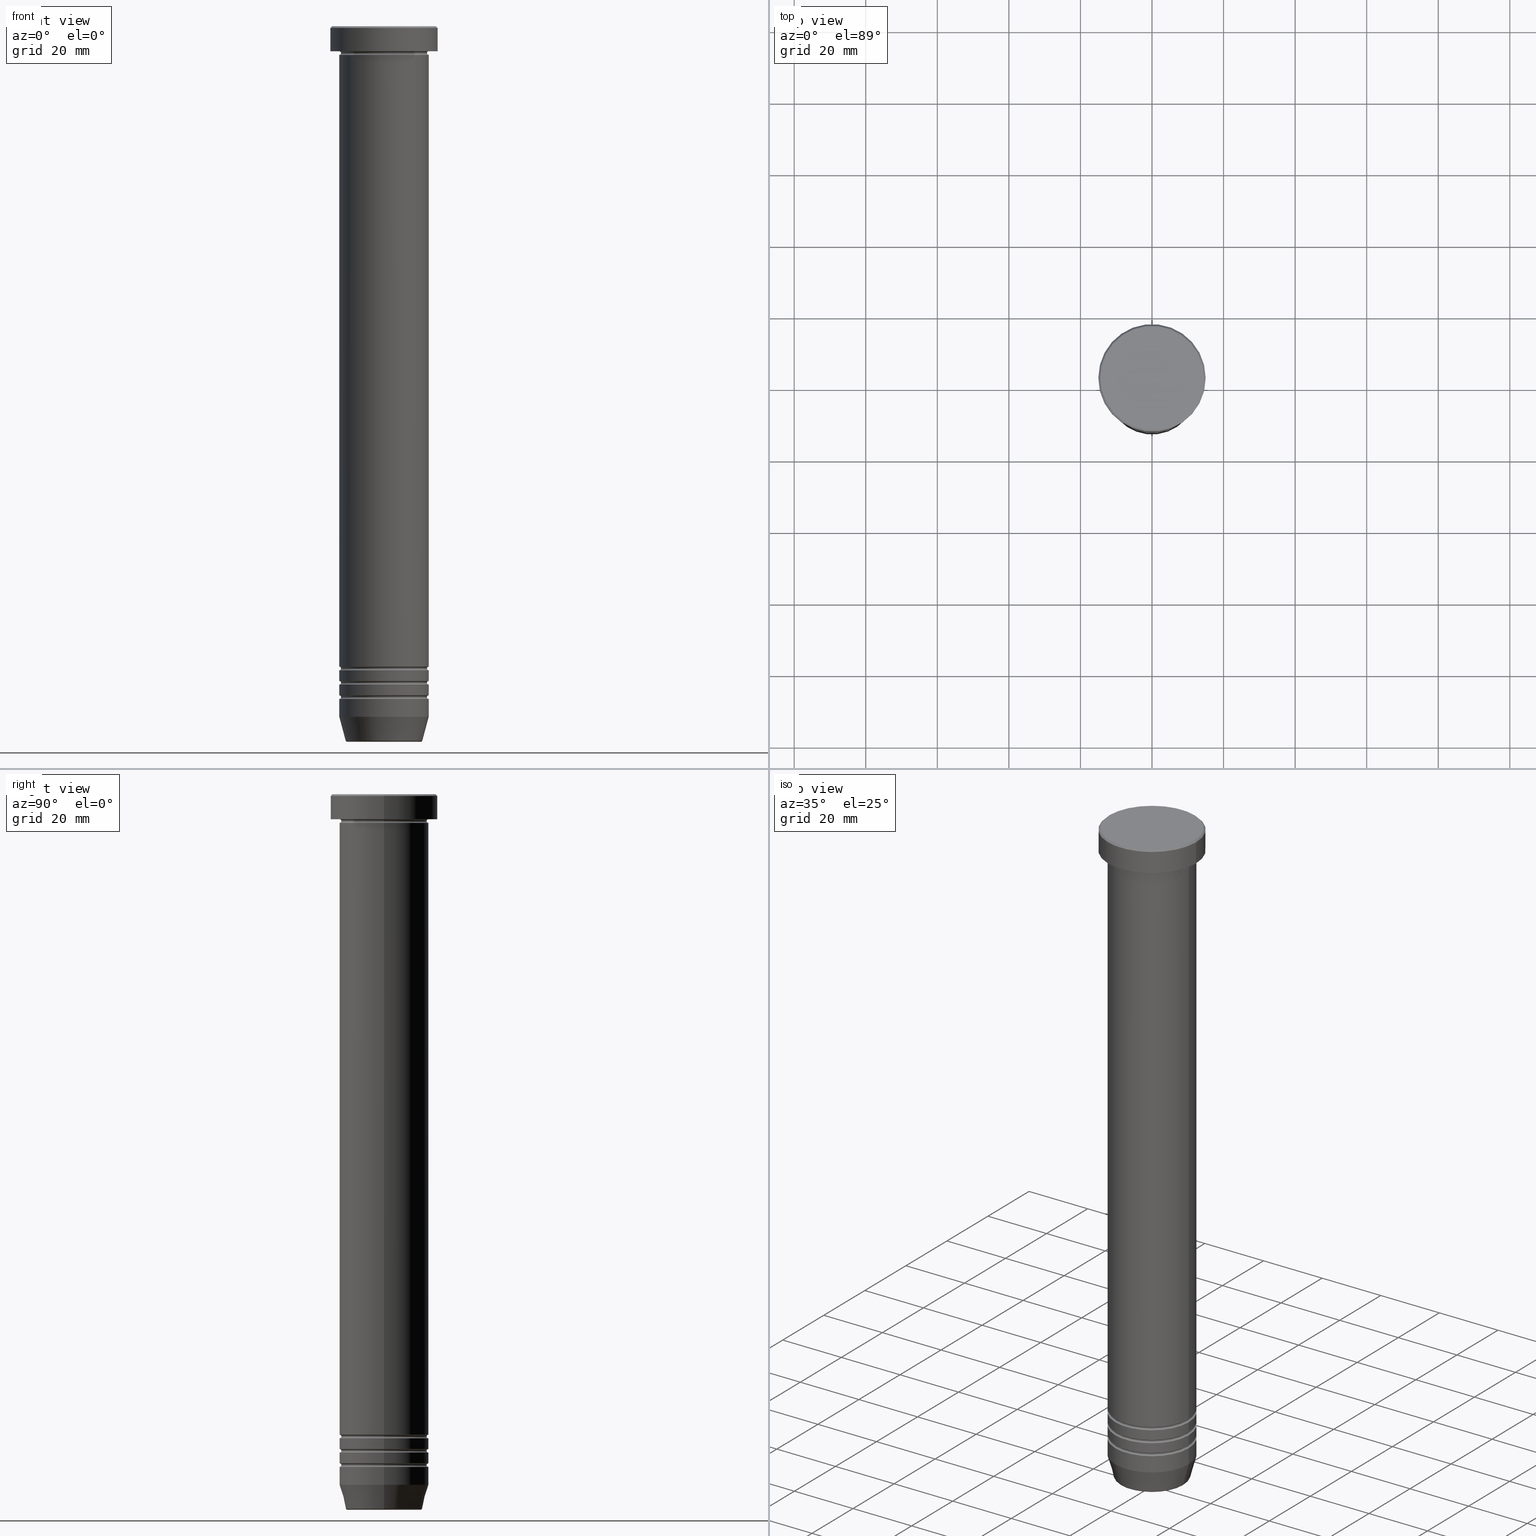
[diagram: canonical four-view strip — front | top / right | iso, engineering-drawing reading convention]
A machine part, canonical four-view strip (front | top / right | iso — engineering-drawing reading convention). The complete STEP part file that produces these views, byte-faithful:
ISO-10303-21;
HEADER;
FILE_DESCRIPTION (( 'STEP AP203' ),
    '1' );
FILE_NAME ('c3f3.STEP',
    '2024-01-02T20:25:45',
    ( '' ),
    ( '' ),
    'SwSTEP 2.0',
    'SolidWorks 2019',
    '' );
FILE_SCHEMA (( 'CONFIG_CONTROL_DESIGN' ));
ENDSEC;

DATA;
#1 = CARTESIAN_POINT ( 'NONE',  ( 0.000000000000000000, 0.000000000000000000, -183.0000000000000000 ) ) ;
#2 = CARTESIAN_POINT ( 'NONE',  ( 0.000000000000000000, 0.000000000000000000, -183.5000000000000000 ) ) ;
#3 = ADVANCED_FACE ( 'NONE', ( #477 ), #1051, .T. ) ;
#4 = CARTESIAN_POINT ( 'NONE',  ( 12.49999999999999645, 0.000000000000000000, 0.000000000000000000 ) ) ;
#5 = CONICAL_SURFACE ( 'NONE', #686, 10.62435565298213547, 0.2617993877991500740 ) ;
#6 = CIRCLE ( 'NONE', #209, 12.50000000000000000 ) ;
#7 = AXIS2_PLACEMENT_3D ( 'NONE', #205, #529, #693 ) ;
#8 = VERTEX_POINT ( 'NONE', #555 ) ;
#9 = CC_DESIGN_PERSON_AND_ORGANIZATION_ASSIGNMENT ( #831, #502, ( #359 ) ) ;
#10 = AXIS2_PLACEMENT_3D ( 'NONE', #505, #183, #431 ) ;
#11 = TOROIDAL_SURFACE ( 'NONE', #497, 12.49999999999999645, 0.5000000000000000000 ) ;
#12 = CARTESIAN_POINT ( 'NONE',  ( 0.000000000000000000, 0.000000000000000000, 0.000000000000000000 ) ) ;
#13 = DIRECTION ( 'NONE',  ( 1.000000000000000000, 0.000000000000000000, 0.000000000000000000 ) ) ;
#14 = DIRECTION ( 'NONE',  ( -1.000000000000000000, 0.000000000000000000, 0.000000000000000000 ) ) ;
#15 = DIRECTION ( 'NONE',  ( -0.000000000000000000, -0.000000000000000000, 1.000000000000000000 ) ) ;
#16 = EDGE_LOOP ( 'NONE', ( #87, #620, #744, #1017 ) ) ;
#17 = DIRECTION ( 'NONE',  ( 1.000000000000000000, 0.000000000000000000, 0.000000000000000000 ) ) ;
#18 = CALENDAR_DATE ( 2024, 2, 1 ) ;
#19 = CARTESIAN_POINT ( 'NONE',  ( 12.49999999999999645, 1.530808498934191127E-15, -179.5000000000000000 ) ) ;
#20 = ORIENTED_EDGE ( 'NONE', *, *, #943, .T. ) ;
#21 = EDGE_CURVE ( 'NONE', #829, #691, #226, .T. ) ;
#22 = DIRECTION ( 'NONE',  ( -0.000000000000000000, -0.000000000000000000, 1.000000000000000000 ) ) ;
#23 = TOROIDAL_SURFACE ( 'NONE', #24, 10.24069215899265828, 0.5000000000000000000 ) ;
#24 = AXIS2_PLACEMENT_3D ( 'NONE', #590, #104, #1014 ) ;
#25 = DATE_TIME_ROLE ( 'creation_date' ) ;
#26 = TOROIDAL_SURFACE ( 'NONE', #517, 12.50000000000000000, 0.5000000000000000000 ) ;
#27 = CARTESIAN_POINT ( 'NONE',  ( -12.50000000000000000, 1.530808498934191521E-15, -50.00000000000000000 ) ) ;
#28 = ORIENTED_EDGE ( 'NONE', *, *, #834, .T. ) ;
#29 = DIRECTION ( 'NONE',  ( 1.000000000000000000, 0.000000000000000000, 0.000000000000000000 ) ) ;
#30 = ADVANCED_FACE ( 'NONE', ( #978 ), #714, .F. ) ;
#31 = DIRECTION ( 'NONE',  ( -0.000000000000000000, -0.000000000000000000, 1.000000000000000000 ) ) ;
#32 = DIRECTION ( 'NONE',  ( 1.000000000000000000, 0.000000000000000000, 0.000000000000000000 ) ) ;
#33 = EDGE_LOOP ( 'NONE', ( #708, #76, #421, #526 ) ) ;
#34 = DIRECTION ( 'NONE',  ( -0.000000000000000000, -0.000000000000000000, 1.000000000000000000 ) ) ;
#35 = PERSON_AND_ORGANIZATION ( #884, #737 ) ;
#36 = CARTESIAN_POINT ( 'NONE',  ( 0.000000000000000000, 0.000000000000000000, -6.999999999999998224 ) ) ;
#37 = ORIENTED_EDGE ( 'NONE', *, *, #1012, .T. ) ;
#38 = DIRECTION ( 'NONE',  ( -0.000000000000000000, -0.000000000000000000, 1.000000000000000000 ) ) ;
#39 = DATE_TIME_ROLE ( 'classification_date' ) ;
#40 = ADVANCED_FACE ( 'NONE', ( #745 ), #699, .F. ) ;
#41 = VECTOR ( 'NONE', #982, 1000.000000000000000 ) ;
#42 = AXIS2_PLACEMENT_3D ( 'NONE', #650, #799, #988 ) ;
#43 = DIRECTION ( 'NONE',  ( -0.2588190451025213501, 3.169619151431772337E-17, 0.9659258262890680902 ) ) ;
#44 = ORIENTED_EDGE ( 'NONE', *, *, #747, .T. ) ;
#45 = AXIS2_PLACEMENT_3D ( 'NONE', #1, #734, #987 ) ;
#46 = DIRECTION ( 'NONE',  ( -0.000000000000000000, -0.000000000000000000, 1.000000000000000000 ) ) ;
#47 = ORIENTED_EDGE ( 'NONE', *, *, #356, .T. ) ;
#48 = LINE ( 'NONE', #966, #928 ) ;
#49 = CARTESIAN_POINT ( 'NONE',  ( 0.000000000000000000, 0.000000000000000000, -7.500000000000000000 ) ) ;
#50 = ORIENTED_EDGE ( 'NONE', *, *, #251, .T. ) ;
#51 = DIRECTION ( 'NONE',  ( 0.000000000000000000, 0.000000000000000000, -1.000000000000000000 ) ) ;
#52 = EDGE_CURVE ( 'NONE', #544, #739, #646, .T. ) ;
#53 = ORIENTED_EDGE ( 'NONE', *, *, #528, .T. ) ;
#54 = CIRCLE ( 'NONE', #465, 12.00000000000000000 ) ;
#55 = CARTESIAN_POINT ( 'NONE',  ( 0.000000000000000000, 0.000000000000000000, -7.500000000000000000 ) ) ;
#56 = AXIS2_PLACEMENT_3D ( 'NONE', #135, #854, #51 ) ;
#57 = DIRECTION ( 'NONE',  ( -0.000000000000000000, -0.000000000000000000, 1.000000000000000000 ) ) ;
#58 = VECTOR ( 'NONE', #43, 1000.000000000000000 ) ;
#59 = AXIS2_PLACEMENT_3D ( 'NONE', #897, #77, #711 ) ;
#60 = ORIENTED_EDGE ( 'NONE', *, *, #299, .F. ) ;
#61 = CARTESIAN_POINT ( 'NONE',  ( 0.000000000000000000, 0.000000000000000000, -187.0000000000000000 ) ) ;
#62 = ADVANCED_FACE ( 'NONE', ( #990 ), #445, .T. ) ;
#63 = VERTEX_POINT ( 'NONE', #79 ) ;
#64 = ADVANCED_FACE ( 'NONE', ( #724 ), #159, .T. ) ;
#65 = CARTESIAN_POINT ( 'NONE',  ( 0.000000000000000000, 0.000000000000000000, -8.000000000000000000 ) ) ;
#66 = ORIENTED_EDGE ( 'NONE', *, *, #224, .F. ) ;
#67 = ADVANCED_BREP_SHAPE_REPRESENTATION ( 'c3f3', ( #851, #475, #10 ), #314 ) ;
#68 = ORIENTED_EDGE ( 'NONE', *, *, #52, .T. ) ;
#69 = CARTESIAN_POINT ( 'NONE',  ( -14.50000000000001066, 0.000000000000000000, 0.000000000000000000 ) ) ;
#70 = CARTESIAN_POINT ( 'NONE',  ( -12.49999999999999645, 1.530808498934191127E-15, -179.5000000000000000 ) ) ;
#71 = AXIS2_PLACEMENT_3D ( 'NONE', #112, #198, #520 ) ;
#72 = AXIS2_PLACEMENT_3D ( 'NONE', #754, #190, #842 ) ;
#73 = ORIENTED_EDGE ( 'NONE', *, *, #251, .F. ) ;
#74 = AXIS2_PLACEMENT_3D ( 'NONE', #36, #354, #595 ) ;
#75 = AXIS2_PLACEMENT_3D ( 'NONE', #742, #682, #763 ) ;
#76 = ORIENTED_EDGE ( 'NONE', *, *, #292, .T. ) ;
#77 = DIRECTION ( 'NONE',  ( 0.000000000000000000, 0.000000000000000000, -1.000000000000000000 ) ) ;
#78 = CYLINDRICAL_SURFACE ( 'NONE', #1019, 15.00000000000000000 ) ;
#79 = CARTESIAN_POINT ( 'NONE',  ( 12.49999999999999289, 0.000000000000000000, -187.0000000000000000 ) ) ;
#80 = ORIENTED_EDGE ( 'NONE', *, *, #869, .F. ) ;
#81 = DIRECTION ( 'NONE',  ( 0.000000000000000000, 0.000000000000000000, -1.000000000000000000 ) ) ;
#82 = DIRECTION ( 'NONE',  ( -1.000000000000000000, -1.224646799147353454E-16, 0.000000000000000000 ) ) ;
#83 = LINE ( 'NONE', #406, #144 ) ;
#84 = VERTEX_POINT ( 'NONE', #342 ) ;
#85 = CARTESIAN_POINT ( 'NONE',  ( 0.000000000000000000, 0.000000000000000000, -193.0000000000000000 ) ) ;
#86 = CARTESIAN_POINT ( 'NONE',  ( 0.000000000000000000, 0.000000000000000000, -6.999999999999999112 ) ) ;
#87 = ORIENTED_EDGE ( 'NONE', *, *, #587, .F. ) ;
#88 = CIRCLE ( 'NONE', #516, 12.49999999999999289 ) ;
#89 = EDGE_CURVE ( 'NONE', #199, #162, #415, .T. ) ;
#90 = TOROIDAL_SURFACE ( 'NONE', #688, 12.49999999999999645, 0.5000000000000000000 ) ;
#91 = VECTOR ( 'NONE', #216, 1000.000000000000000 ) ;
#92 = ORIENTED_EDGE ( 'NONE', *, *, #89, .F. ) ;
#93 = CC_DESIGN_APPROVAL ( #230, ( #955 ) ) ;
#94 = DIRECTION ( 'NONE',  ( -0.7071067811865512365, 0.000000000000000000, -0.7071067811865439090 ) ) ;
#95 = DIRECTION ( 'NONE',  ( 1.000000000000000000, 0.000000000000000000, 0.000000000000000000 ) ) ;
#96 = EDGE_LOOP ( 'NONE', ( #345, #932, #572, #92 ) ) ;
#97 = DIRECTION ( 'NONE',  ( 1.000000000000000000, 0.000000000000000000, 0.000000000000000000 ) ) ;
#98 = APPROVAL_STATUS ( 'not_yet_approved' ) ;
#99 = CARTESIAN_POINT ( 'NONE',  ( -12.49999999999999822, 1.530808498934191324E-15, -183.0000000000000000 ) ) ;
#100 = VERTEX_POINT ( 'NONE', #250 ) ;
#101 = CARTESIAN_POINT ( 'NONE',  ( 0.000000000000000000, 0.000000000000000000, -50.00000000000000000 ) ) ;
#102 = PERSON_AND_ORGANIZATION ( #884, #737 ) ;
#103 = EDGE_CURVE ( 'NONE', #848, #149, #892, .T. ) ;
#104 = DIRECTION ( 'NONE',  ( -0.000000000000000000, -0.000000000000000000, 1.000000000000000000 ) ) ;
#105 = ORIENTED_EDGE ( 'NONE', *, *, #147, .F. ) ;
#106 = DIRECTION ( 'NONE',  ( -0.000000000000000000, -0.000000000000000000, 1.000000000000000000 ) ) ;
#107 = CIRCLE ( 'NONE', #983, 10.72365507213718416 ) ;
#108 = TOROIDAL_SURFACE ( 'NONE', #244, 12.49999999999999645, 0.5000000000000000000 ) ;
#109 = AXIS2_PLACEMENT_3D ( 'NONE', #254, #320, #241 ) ;
#110 = FACE_OUTER_BOUND ( 'NONE', #561, .T. ) ;
#111 = DIRECTION ( 'NONE',  ( -1.000000000000000000, 0.000000000000000000, -0.000000000000000000 ) ) ;
#112 = CARTESIAN_POINT ( 'NONE',  ( 0.000000000000000000, 0.000000000000000000, -200.0000000000000000 ) ) ;
#113 = DATE_AND_TIME ( #417, #1005 ) ;
#114 = DIRECTION ( 'NONE',  ( 0.000000000000000000, 0.000000000000000000, -1.000000000000000000 ) ) ;
#115 = EDGE_LOOP ( 'NONE', ( #991, #188, #632, #986 ) ) ;
#116 = CARTESIAN_POINT ( 'NONE',  ( 0.000000000000000000, 0.000000000000000000, -183.5000000000000000 ) ) ;
#117 = EDGE_CURVE ( 'NONE', #1020, #170, #107, .T. ) ;
#118 = DIRECTION ( 'NONE',  ( -0.000000000000000000, -0.000000000000000000, 1.000000000000000000 ) ) ;
#119 = ORIENTED_EDGE ( 'NONE', *, *, #965, .T. ) ;
#120 = CARTESIAN_POINT ( 'NONE',  ( 0.000000000000000000, 0.000000000000000000, -7.500000000000000000 ) ) ;
#121 = AXIS2_PLACEMENT_3D ( 'NONE', #676, #833, #286 ) ;
#122 = TOROIDAL_SURFACE ( 'NONE', #72, 12.49999999999999645, 0.5000000000000000000 ) ;
#123 = CARTESIAN_POINT ( 'NONE',  ( -11.99999999999999645, 1.500192328955507537E-15, -183.5000000000000000 ) ) ;
#124 = ORIENTED_EDGE ( 'NONE', *, *, #548, .F. ) ;
#125 = CIRCLE ( 'NONE', #954, 12.00000000000000000 ) ;
#126 = APPROVAL_PERSON_ORGANIZATION ( #102, #700, #938 ) ;
#127 = CARTESIAN_POINT ( 'NONE',  ( -12.50000000000000000, 1.530808498934191521E-15, -180.0000000000000000 ) ) ;
#128 = DIRECTION ( 'NONE',  ( -1.000000000000000000, 0.000000000000000000, 0.000000000000000000 ) ) ;
#129 = ORIENTED_EDGE ( 'NONE', *, *, #524, .F. ) ;
#130 = DIRECTION ( 'NONE',  ( 0.000000000000000000, 0.000000000000000000, -1.000000000000000000 ) ) ;
#131 = EDGE_LOOP ( 'NONE', ( #575, #290, #796, #402 ) ) ;
#132 = ADVANCED_FACE ( 'NONE', ( #999 ), #5, .T. ) ;
#133 = CYLINDRICAL_SURFACE ( 'NONE', #822, 12.49999999999999645 ) ;
#134 = EDGE_CURVE ( 'NONE', #655, #162, #532, .T. ) ;
#135 = CARTESIAN_POINT ( 'NONE',  ( -12.49999999999999645, 0.000000000000000000, -179.5000000000000000 ) ) ;
#136 = EDGE_LOOP ( 'NONE', ( #459, #50 ) ) ;
#137 = PERSON_AND_ORGANIZATION ( #884, #737 ) ;
#138 = AXIS2_PLACEMENT_3D ( 'NONE', #571, #501, #560 ) ;
#139 = DIRECTION ( 'NONE',  ( 1.000000000000000000, 0.000000000000000000, 0.000000000000000000 ) ) ;
#140 = AXIS2_PLACEMENT_3D ( 'NONE', #720, #889, #728 ) ;
#141 = CARTESIAN_POINT ( 'NONE',  ( 0.000000000000000000, 0.000000000000000000, -50.00000000000000000 ) ) ;
#142 = CONICAL_SURFACE ( 'NONE', #735, 10.62435565298213547, 0.2617993877991500740 ) ;
#143 = LOCAL_TIME ( 21, 25, 45.00000000000000000, #665 ) ;
#144 = VECTOR ( 'NONE', #582, 1000.000000000000000 ) ;
#145 = ORIENTED_EDGE ( 'NONE', *, *, #404, .F. ) ;
#146 = FACE_OUTER_BOUND ( 'NONE', #685, .T. ) ;
#147 = EDGE_CURVE ( 'NONE', #586, #433, #660, .T. ) ;
#148 = DIRECTION ( 'NONE',  ( 1.000000000000000000, 0.000000000000000000, 0.000000000000000000 ) ) ;
#149 = VERTEX_POINT ( 'NONE', #186 ) ;
#150 = EDGE_CURVE ( 'NONE', #875, #980, #853, .T. ) ;
#151 = EDGE_LOOP ( 'NONE', ( #694, #709, #275, #44 ) ) ;
#152 = CARTESIAN_POINT ( 'NONE',  ( -15.00000000000000000, 1.836970198721029589E-15, -0.4999999999999831246 ) ) ;
#153 = DIRECTION ( 'NONE',  ( -1.224646799147353207E-16, 1.000000000000000000, 0.000000000000000000 ) ) ;
#154 = DIRECTION ( 'NONE',  ( -1.224646799147353207E-16, 1.000000000000000000, 0.000000000000000000 ) ) ;
#155 = ORIENTED_EDGE ( 'NONE', *, *, #778, .T. ) ;
#156 = DIRECTION ( 'NONE',  ( -1.000000000000000000, 0.000000000000000000, 0.000000000000000000 ) ) ;
#157 = CIRCLE ( 'NONE', #753, 14.50000000000001066 ) ;
#158 = TOROIDAL_SURFACE ( 'NONE', #429, 12.49999999999999645, 0.5000000000000000000 ) ;
#159 = CYLINDRICAL_SURFACE ( 'NONE', #293, 12.50000000000000000 ) ;
#160 = VECTOR ( 'NONE', #450, 1000.000000000000000 ) ;
#161 = EDGE_CURVE ( 'NONE', #1020, #739, #83, .T. ) ;
#162 = VERTEX_POINT ( 'NONE', #729 ) ;
#163 = CARTESIAN_POINT ( 'NONE',  ( 0.000000000000000000, 0.000000000000000000, -183.5000000000000000 ) ) ;
#164 = CARTESIAN_POINT ( 'NONE',  ( 0.000000000000000000, 0.000000000000000000, -187.5000000000000000 ) ) ;
#165 = DIRECTION ( 'NONE',  ( 1.000000000000000000, 0.000000000000000000, 0.000000000000000000 ) ) ;
#166 = VERTEX_POINT ( 'NONE', #920 ) ;
#167 = ADVANCED_FACE ( 'NONE', ( #434 ), #844, .F. ) ;
#168 = CARTESIAN_POINT ( 'NONE',  ( 0.000000000000000000, 0.000000000000000000, -183.0000000000000000 ) ) ;
#169 = DIRECTION ( 'NONE',  ( -0.000000000000000000, -0.000000000000000000, 1.000000000000000000 ) ) ;
#170 = VERTEX_POINT ( 'NONE', #598 ) ;
#171 = EDGE_CURVE ( 'NONE', #769, #848, #770, .T. ) ;
#172 = CARTESIAN_POINT ( 'NONE',  ( 0.000000000000000000, 0.000000000000000000, -199.5000000000000000 ) ) ;
#173 = ORIENTED_EDGE ( 'NONE', *, *, #282, .F. ) ;
#174 = CYLINDRICAL_SURFACE ( 'NONE', #109, 12.49999999999999645 ) ;
#175 = ADVANCED_FACE ( 'NONE', ( #762 ), #11, .F. ) ;
#176 = DIRECTION ( 'NONE',  ( 0.000000000000000000, 0.000000000000000000, -1.000000000000000000 ) ) ;
#177 = CARTESIAN_POINT ( 'NONE',  ( 0.000000000000000000, 0.000000000000000000, -179.5000000000000000 ) ) ;
#178 = AXIS2_PLACEMENT_3D ( 'NONE', #172, #890, #664 ) ;
#179 = CIRCLE ( 'NONE', #56, 0.5000000000000004441 ) ;
#180 = EDGE_CURVE ( 'NONE', #398, #316, #672, .T. ) ;
#181 = AXIS2_PLACEMENT_3D ( 'NONE', #384, #371, #878 ) ;
#182 = CONICAL_SURFACE ( 'NONE', #689, 14.50000000000001066, 0.7853981633974533860 ) ;
#183 = DIRECTION ( 'NONE',  ( 0.000000000000000000, 0.000000000000000000, 1.000000000000000000 ) ) ;
#184 = DIRECTION ( 'NONE',  ( 1.000000000000000000, 0.000000000000000000, 0.000000000000000000 ) ) ;
#185 = EDGE_LOOP ( 'NONE', ( #522, #959, #780, #539 ) ) ;
#186 = CARTESIAN_POINT ( 'NONE',  ( 11.99999999999999645, 0.000000000000000000, -187.5000000000000000 ) ) ;
#187 = EDGE_CURVE ( 'NONE', #387, #586, #738, .T. ) ;
#188 = ORIENTED_EDGE ( 'NONE', *, *, #299, .T. ) ;
#189 = DIRECTION ( 'NONE',  ( 1.000000000000000000, 0.000000000000000000, 0.000000000000000000 ) ) ;
#190 = DIRECTION ( 'NONE',  ( 0.000000000000000000, 0.000000000000000000, -1.000000000000000000 ) ) ;
#191 = ORIENTED_EDGE ( 'NONE', *, *, #1040, .T. ) ;
#192 = CARTESIAN_POINT ( 'NONE',  ( 12.49999999999999289, 0.000000000000000000, -179.0000000000000000 ) ) ;
#193 = TOROIDAL_SURFACE ( 'NONE', #413, 12.49999999999999645, 0.5000000000000000000 ) ;
#194 = AXIS2_PLACEMENT_3D ( 'NONE', #85, #474, #906 ) ;
#195 = APPLICATION_PROTOCOL_DEFINITION ( 'international standard', 'config_control_design', 1994, #751 ) ;
#196 = FACE_OUTER_BOUND ( 'NONE', #454, .T. ) ;
#197 = ORIENTED_EDGE ( 'NONE', *, *, #1040, .F. ) ;
#198 = DIRECTION ( 'NONE',  ( 0.000000000000000000, 0.000000000000000000, -1.000000000000000000 ) ) ;
#199 = VERTEX_POINT ( 'NONE', #192 ) ;
#200 = DATE_AND_TIME ( #423, #143 ) ;
#201 = DIRECTION ( 'NONE',  ( -0.000000000000000000, -0.000000000000000000, 1.000000000000000000 ) ) ;
#202 = ORIENTED_EDGE ( 'NONE', *, *, #661, .T. ) ;
#203 = DIRECTION ( 'NONE',  ( -0.000000000000000000, -0.000000000000000000, 1.000000000000000000 ) ) ;
#204 = APPROVAL_ROLE ( '' ) ;
#205 = CARTESIAN_POINT ( 'NONE',  ( 0.000000000000000000, 0.000000000000000000, -7.500000000000000000 ) ) ;
#206 = ORIENTED_EDGE ( 'NONE', *, *, #869, .T. ) ;
#207 = CARTESIAN_POINT ( 'NONE',  ( 0.000000000000000000, 0.000000000000000000, -187.0000000000000000 ) ) ;
#208 = TOROIDAL_SURFACE ( 'NONE', #836, 12.49999999999999645, 0.5000000000000000000 ) ;
#209 = AXIS2_PLACEMENT_3D ( 'NONE', #86, #492, #156 ) ;
#210 = CARTESIAN_POINT ( 'NONE',  ( -12.49999999999999645, 1.530808498934191127E-15, 0.000000000000000000 ) ) ;
#211 = EDGE_LOOP ( 'NONE', ( #391, #232, #145, #777 ) ) ;
#212 = CIRCLE ( 'NONE', #313, 11.99999999999999645 ) ;
#213 = CARTESIAN_POINT ( 'NONE',  ( 0.000000000000000000, 0.000000000000000000, -183.5000000000000000 ) ) ;
#214 = APPROVAL_DATE_TIME ( #956, #230 ) ;
#215 = EDGE_CURVE ( 'NONE', #852, #721, #277, .T. ) ;
#216 = DIRECTION ( 'NONE',  ( -0.000000000000000000, -0.000000000000000000, 1.000000000000000000 ) ) ;
#217 = DIRECTION ( 'NONE',  ( -1.000000000000000000, 1.224646799147353454E-16, 0.000000000000000000 ) ) ;
#218 = ORIENTED_EDGE ( 'NONE', *, *, #939, .T. ) ;
#219 = DIRECTION ( 'NONE',  ( 0.000000000000000000, 0.000000000000000000, -1.000000000000000000 ) ) ;
#220 = EDGE_CURVE ( 'NONE', #63, #398, #597, .T. ) ;
#221 = CARTESIAN_POINT ( 'NONE',  ( 12.49999999999999645, 0.000000000000000000, 0.000000000000000000 ) ) ;
#222 = ORIENTED_EDGE ( 'NONE', *, *, #850, .F. ) ;
#223 = PERSON_AND_ORGANIZATION ( #884, #737 ) ;
#224 = EDGE_CURVE ( 'NONE', #438, #100, #378, .T. ) ;
#225 = ADVANCED_FACE ( 'NONE', ( #272 ), #460, .F. ) ;
#226 = CIRCLE ( 'NONE', #630, 0.5000000000000004441 ) ;
#227 = DIRECTION ( 'NONE',  ( 1.000000000000000000, 0.000000000000000000, 0.000000000000000000 ) ) ;
#228 = CARTESIAN_POINT ( 'NONE',  ( 0.000000000000000000, 0.000000000000000000, -187.5000000000000000 ) ) ;
#229 = CIRCLE ( 'NONE', #876, 11.99999999999999645 ) ;
#230 = APPROVAL ( #626, 'NEUR�EN�' ) ;
#231 = ORIENTED_EDGE ( 'NONE', *, *, #921, .F. ) ;
#232 = ORIENTED_EDGE ( 'NONE', *, *, #373, .T. ) ;
#233 = CARTESIAN_POINT ( 'NONE',  ( 0.000000000000000000, 0.000000000000000000, -183.5000000000000000 ) ) ;
#234 = FACE_OUTER_BOUND ( 'NONE', #557, .T. ) ;
#235 = DIRECTION ( 'NONE',  ( 0.000000000000000000, -0.000000000000000000, 1.000000000000000000 ) ) ;
#236 = ORIENTED_EDGE ( 'NONE', *, *, #21, .F. ) ;
#237 = FACE_OUTER_BOUND ( 'NONE', #611, .T. ) ;
#238 = CARTESIAN_POINT ( 'NONE',  ( 0.000000000000000000, 0.000000000000000000, 0.000000000000000000 ) ) ;
#239 = DIRECTION ( 'NONE',  ( -0.000000000000000000, -0.000000000000000000, 1.000000000000000000 ) ) ;
#240 = ORIENTED_EDGE ( 'NONE', *, *, #741, .F. ) ;
#241 = DIRECTION ( 'NONE',  ( 1.000000000000000000, 0.000000000000000000, 0.000000000000000000 ) ) ;
#242 = CIRCLE ( 'NONE', #951, 12.50000000000000000 ) ;
#243 = DIRECTION ( 'NONE',  ( 1.000000000000000000, 0.000000000000000000, 0.000000000000000000 ) ) ;
#244 = AXIS2_PLACEMENT_3D ( 'NONE', #249, #321, #569 ) ;
#245 = CIRCLE ( 'NONE', #839, 12.49999999999999822 ) ;
#246 = DIRECTION ( 'NONE',  ( 0.000000000000000000, 0.000000000000000000, -1.000000000000000000 ) ) ;
#247 = VERTEX_POINT ( 'NONE', #771 ) ;
#248 = DIRECTION ( 'NONE',  ( 0.000000000000000000, 0.000000000000000000, -1.000000000000000000 ) ) ;
#249 = CARTESIAN_POINT ( 'NONE',  ( 0.000000000000000000, 0.000000000000000000, -179.5000000000000000 ) ) ;
#250 = CARTESIAN_POINT ( 'NONE',  ( 12.50000000000000000, 0.000000000000000000, -180.0000000000000000 ) ) ;
#251 = EDGE_CURVE ( 'NONE', #328, #472, #426, .T. ) ;
#252 = ORIENTED_EDGE ( 'NONE', *, *, #441, .F. ) ;
#253 = ADVANCED_FACE ( 'NONE', ( #758 ), #942, .T. ) ;
#254 = CARTESIAN_POINT ( 'NONE',  ( 0.000000000000000000, 0.000000000000000000, 0.000000000000000000 ) ) ;
#255 = DIRECTION ( 'NONE',  ( 1.000000000000000000, 0.000000000000000000, 0.000000000000000000 ) ) ;
#256 = ORIENTED_EDGE ( 'NONE', *, *, #864, .F. ) ;
#257 = DIRECTION ( 'NONE',  ( -1.224646799147353207E-16, 1.000000000000000000, 0.000000000000000000 ) ) ;
#258 =( LENGTH_UNIT ( ) NAMED_UNIT ( * ) SI_UNIT ( .MILLI., .METRE. ) );
#259 = ADVANCED_FACE ( 'NONE', ( #276 ), #208, .F. ) ;
#260 = DIRECTION ( 'NONE',  ( 0.000000000000000000, 0.000000000000000000, -1.000000000000000000 ) ) ;
#261 = ORIENTED_EDGE ( 'NONE', *, *, #333, .T. ) ;
#262 = DIRECTION ( 'NONE',  ( 1.000000000000000000, 0.000000000000000000, 0.000000000000000000 ) ) ;
#263 = AXIS2_PLACEMENT_3D ( 'NONE', #740, #257, #806 ) ;
#264 = AXIS2_PLACEMENT_3D ( 'NONE', #70, #395, #1055 ) ;
#265 = AXIS2_PLACEMENT_3D ( 'NONE', #827, #677, #584 ) ;
#266 = LINE ( 'NONE', #922, #350 ) ;
#267 = CARTESIAN_POINT ( 'NONE',  ( 0.000000000000000000, 0.000000000000000000, -0.4999999999999831246 ) ) ;
#268 = ORIENTED_EDGE ( 'NONE', *, *, #528, .F. ) ;
#269 = DESIGN_CONTEXT ( 'detailed design', #751, 'design' ) ;
#270 = CARTESIAN_POINT ( 'NONE',  ( -12.50000000000000000, 1.530808498934191521E-15, -50.00000000000000000 ) ) ;
#271 = EDGE_LOOP ( 'NONE', ( #716, #813 ) ) ;
#272 = FACE_OUTER_BOUND ( 'NONE', #131, .T. ) ;
#273 = APPROVAL_STATUS ( 'not_yet_approved' ) ;
#274 = DIRECTION ( 'NONE',  ( -1.000000000000000000, 0.000000000000000000, 0.000000000000000000 ) ) ;
#275 = ORIENTED_EDGE ( 'NONE', *, *, #435, .T. ) ;
#276 = FACE_OUTER_BOUND ( 'NONE', #551, .T. ) ;
#277 = CIRCLE ( 'NONE', #911, 12.50000000000000000 ) ;
#278 = CIRCLE ( 'NONE', #874, 12.50000000000000000 ) ;
#279 = VERTEX_POINT ( 'NONE', #947 ) ;
#280 = CIRCLE ( 'NONE', #500, 0.5000000000000004441 ) ;
#281 = CLOSED_SHELL ( 'NONE', ( #542, #225, #872, #259, #656, #175, #619, #673, #540, #132, #1034, #979, #824, #566, #723, #167, #401, #929, #64, #62, #479, #841, #923, #416, #30, #589 ) ) ;
#282 = EDGE_CURVE ( 'NONE', #456, #8, #801, .T. ) ;
#283 = DIRECTION ( 'NONE',  ( 1.000000000000000000, 0.000000000000000000, 0.000000000000000000 ) ) ;
#284 = PRODUCT_DEFINITION_SHAPE ( 'NONE', 'NONE',  #896 ) ;
#285 = VERTEX_POINT ( 'NONE', #606 ) ;
#286 = DIRECTION ( 'NONE',  ( -1.000000000000000000, 0.000000000000000000, -0.000000000000000000 ) ) ;
#287 = FACE_OUTER_BOUND ( 'NONE', #33, .T. ) ;
#288 = ORIENTED_EDGE ( 'NONE', *, *, #943, .F. ) ;
#289 = EDGE_CURVE ( 'NONE', #100, #438, #242, .T. ) ;
#290 = ORIENTED_EDGE ( 'NONE', *, *, #587, .T. ) ;
#291 = CYLINDRICAL_SURFACE ( 'NONE', #855, 15.00000000000000000 ) ;
#292 = EDGE_CURVE ( 'NONE', #468, #285, #54, .T. ) ;
#293 = AXIS2_PLACEMENT_3D ( 'NONE', #900, #817, #1060 ) ;
#294 = COORDINATED_UNIVERSAL_TIME_OFFSET ( 1, 0, .AHEAD. ) ;
#295 = AXIS2_PLACEMENT_3D ( 'NONE', #1042, #559, #243 ) ;
#296 = AXIS2_PLACEMENT_3D ( 'NONE', #949, #706, #1041 ) ;
#297 = DIRECTION ( 'NONE',  ( 1.000000000000000000, 0.000000000000000000, 0.000000000000000000 ) ) ;
#298 = CARTESIAN_POINT ( 'NONE',  ( -10.24069215899265828, 1.254123087356375833E-15, -199.5000000000000000 ) ) ;
#299 = EDGE_CURVE ( 'NONE', #848, #769, #1031, .T. ) ;
#300 = ORIENTED_EDGE ( 'NONE', *, *, #625, .F. ) ;
#301 = DIRECTION ( 'NONE',  ( -0.000000000000000000, -0.000000000000000000, 1.000000000000000000 ) ) ;
#302 = CARTESIAN_POINT ( 'NONE',  ( 14.50000000000001066, 1.806354028742346591E-15, 0.000000000000000000 ) ) ;
#303 = ORIENTED_EDGE ( 'NONE', *, *, #807, .F. ) ;
#304 = EDGE_CURVE ( 'NONE', #472, #328, #514, .T. ) ;
#305 = DIRECTION ( 'NONE',  ( -1.000000000000000000, 1.224646799147353454E-16, 0.000000000000000000 ) ) ;
#306 = CARTESIAN_POINT ( 'NONE',  ( -12.49999999999999289, 1.530808498934190930E-15, -187.0000000000000000 ) ) ;
#307 = ORIENTED_EDGE ( 'NONE', *, *, #524, .T. ) ;
#308 = ORIENTED_EDGE ( 'NONE', *, *, #696, .F. ) ;
#309 = VECTOR ( 'NONE', #484, 1000.000000000000000 ) ;
#310 = CARTESIAN_POINT ( 'NONE',  ( 0.000000000000000000, 0.000000000000000000, 0.000000000000000000 ) ) ;
#311 = AXIS2_PLACEMENT_3D ( 'NONE', #538, #866, #466 ) ;
#312 = LINE ( 'NONE', #862, #701 ) ;
#313 = AXIS2_PLACEMENT_3D ( 'NONE', #610, #794, #774 ) ;
#314 =( GEOMETRIC_REPRESENTATION_CONTEXT ( 3 ) GLOBAL_UNCERTAINTY_ASSIGNED_CONTEXT ( ( #888 ) ) GLOBAL_UNIT_ASSIGNED_CONTEXT ( ( #258, #927, #1013 ) ) REPRESENTATION_CONTEXT ( 'NONE', 'WORKASPACE' ) );
#315 = CARTESIAN_POINT ( 'NONE',  ( 0.000000000000000000, 0.000000000000000000, 0.000000000000000000 ) ) ;
#316 = VERTEX_POINT ( 'NONE', #795 ) ;
#317 = CARTESIAN_POINT ( 'NONE',  ( -12.49999999999999645, 0.000000000000000000, -187.5000000000000000 ) ) ;
#318 = CARTESIAN_POINT ( 'NONE',  ( -12.50000000000000000, 1.530808498934191521E-15, -193.0000000000000000 ) ) ;
#319 = ORIENTED_EDGE ( 'NONE', *, *, #435, .F. ) ;
#320 = DIRECTION ( 'NONE',  ( -0.000000000000000000, -0.000000000000000000, 1.000000000000000000 ) ) ;
#321 = DIRECTION ( 'NONE',  ( 0.000000000000000000, 0.000000000000000000, -1.000000000000000000 ) ) ;
#322 = CARTESIAN_POINT ( 'NONE',  ( 0.000000000000000000, 0.000000000000000000, -50.00000000000000000 ) ) ;
#323 = EDGE_CURVE ( 'NONE', #852, #8, #1038, .T. ) ;
#324 = EDGE_LOOP ( 'NONE', ( #989, #765 ) ) ;
#325 = DIRECTION ( 'NONE',  ( 1.000000000000000000, 0.000000000000000000, 0.000000000000000000 ) ) ;
#326 = VECTOR ( 'NONE', #374, 1000.000000000000000 ) ;
#327 = DIRECTION ( 'NONE',  ( 1.000000000000000000, 0.000000000000000000, 0.000000000000000000 ) ) ;
#328 = VERTEX_POINT ( 'NONE', #455 ) ;
#329 = AXIS2_PLACEMENT_3D ( 'NONE', #618, #1029, #871 ) ;
#330 = CIRCLE ( 'NONE', #756, 12.49999999999999289 ) ;
#331 = ORIENTED_EDGE ( 'NONE', *, *, #593, .T. ) ;
#332 = FACE_OUTER_BOUND ( 'NONE', #372, .T. ) ;
#333 = EDGE_CURVE ( 'NONE', #637, #438, #48, .T. ) ;
#334 = FACE_OUTER_BOUND ( 'NONE', #211, .T. ) ;
#335 = ORIENTED_EDGE ( 'NONE', *, *, #52, .F. ) ;
#336 = CARTESIAN_POINT ( 'NONE',  ( 0.000000000000000000, 0.000000000000000000, -200.0000000000000000 ) ) ;
#337 = EDGE_CURVE ( 'NONE', #63, #829, #389, .T. ) ;
#338 = PERSON_AND_ORGANIZATION_ROLE ( 'design_supplier' ) ;
#339 = EDGE_CURVE ( 'NONE', #1024, #691, #1018, .T. ) ;
#340 = FACE_OUTER_BOUND ( 'NONE', #596, .T. ) ;
#341 = ORIENTED_EDGE ( 'NONE', *, *, #666, .T. ) ;
#342 = CARTESIAN_POINT ( 'NONE',  ( -12.50000000000000000, 0.000000000000000000, -6.999999999999999112 ) ) ;
#343 = PERSON_AND_ORGANIZATION ( #884, #737 ) ;
#344 = DIRECTION ( 'NONE',  ( 1.000000000000000000, 0.000000000000000000, 0.000000000000000000 ) ) ;
#345 = ORIENTED_EDGE ( 'NONE', *, *, #462, .T. ) ;
#346 = DIRECTION ( 'NONE',  ( 1.000000000000000000, 0.000000000000000000, 0.000000000000000000 ) ) ;
#347 = AXIS2_PLACEMENT_3D ( 'NONE', #440, #38, #1007 ) ;
#348 = CIRCLE ( 'NONE', #953, 15.00000000000000000 ) ;
#349 = AXIS2_PLACEMENT_3D ( 'NONE', #821, #409, #248 ) ;
#350 = VECTOR ( 'NONE', #31, 1000.000000000000000 ) ;
#351 = CARTESIAN_POINT ( 'NONE',  ( 0.000000000000000000, 0.000000000000000000, 0.000000000000000000 ) ) ;
#352 = CARTESIAN_POINT ( 'NONE',  ( 0.000000000000000000, 0.000000000000000000, -180.0000000000000000 ) ) ;
#353 = APPLICATION_PROTOCOL_DEFINITION ( 'international standard', 'config_control_design', 1994, #859 ) ;
#354 = DIRECTION ( 'NONE',  ( -0.000000000000000000, -0.000000000000000000, 1.000000000000000000 ) ) ;
#355 = VERTEX_POINT ( 'NONE', #879 ) ;
#356 = EDGE_CURVE ( 'NONE', #398, #63, #88, .T. ) ;
#357 = CARTESIAN_POINT ( 'NONE',  ( -12.49999999999999645, 1.530808498934191127E-15, 0.000000000000000000 ) ) ;
#358 = EDGE_CURVE ( 'NONE', #279, #149, #820, .T. ) ;
#359 = PRODUCT ( 'c3f3', 'c3f3', '', ( #1002 ) ) ;
#360 = PERSON_AND_ORGANIZATION ( #884, #737 ) ;
#361 = DIRECTION ( 'NONE',  ( 1.000000000000000000, 0.000000000000000000, 0.000000000000000000 ) ) ;
#362 = ORIENTED_EDGE ( 'NONE', *, *, #858, .F. ) ;
#363 = DIRECTION ( 'NONE',  ( -0.000000000000000000, -0.000000000000000000, 1.000000000000000000 ) ) ;
#364 = AXIS2_PLACEMENT_3D ( 'NONE', #177, #246, #17 ) ;
#365 = AXIS2_PLACEMENT_3D ( 'NONE', #2, #810, #95 ) ;
#366 = CIRCLE ( 'NONE', #181, 0.5000000000000004441 ) ;
#367 = TOROIDAL_SURFACE ( 'NONE', #59, 12.50000000000000000, 0.5000000000000000000 ) ;
#368 = CARTESIAN_POINT ( 'NONE',  ( 12.50000000000000000, 0.000000000000000000, -193.0000000000000000 ) ) ;
#369 = ORIENTED_EDGE ( 'NONE', *, *, #21, .T. ) ;
#370 = DIRECTION ( 'NONE',  ( -0.000000000000000000, -0.000000000000000000, 1.000000000000000000 ) ) ;
#371 = DIRECTION ( 'NONE',  ( 1.224646799147353207E-16, 1.000000000000000000, 0.000000000000000000 ) ) ;
#372 = EDGE_LOOP ( 'NONE', ( #731, #1015, #60, #268 ) ) ;
#373 = EDGE_CURVE ( 'NONE', #721, #456, #312, .T. ) ;
#374 = DIRECTION ( 'NONE',  ( -0.000000000000000000, -0.000000000000000000, 1.000000000000000000 ) ) ;
#375 = DIRECTION ( 'NONE',  ( 1.000000000000000000, 0.000000000000000000, 0.000000000000000000 ) ) ;
#376 = FACE_OUTER_BOUND ( 'NONE', #861, .T. ) ;
#377 = ORIENTED_EDGE ( 'NONE', *, *, #180, .T. ) ;
#378 = CIRCLE ( 'NONE', #1049, 12.50000000000000000 ) ;
#379 = CIRCLE ( 'NONE', #733, 14.50000000000001066 ) ;
#380 = TOROIDAL_SURFACE ( 'NONE', #913, 12.49999999999999645, 0.5000000000000000000 ) ;
#381 = LINE ( 'NONE', #537, #160 ) ;
#382 = DIRECTION ( 'NONE',  ( 0.000000000000000000, -1.000000000000000000, 0.000000000000000000 ) ) ;
#383 = VERTEX_POINT ( 'NONE', #302 ) ;
#384 = CARTESIAN_POINT ( 'NONE',  ( -12.50000000000000000, 1.530808498934191521E-15, -7.500000000000000000 ) ) ;
#385 = DIRECTION ( 'NONE',  ( -0.000000000000000000, -0.000000000000000000, 1.000000000000000000 ) ) ;
#386 = ORIENTED_EDGE ( 'NONE', *, *, #864, .T. ) ;
#387 = VERTEX_POINT ( 'NONE', #470 ) ;
#388 = DIRECTION ( 'NONE',  ( -0.000000000000000000, -0.000000000000000000, 1.000000000000000000 ) ) ;
#389 = LINE ( 'NONE', #221, #873 ) ;
#390 = EDGE_LOOP ( 'NONE', ( #971, #369, #307, #726 ) ) ;
#391 = ORIENTED_EDGE ( 'NONE', *, *, #215, .T. ) ;
#392 = AXIS2_PLACEMENT_3D ( 'NONE', #422, #370, #444 ) ;
#393 = CARTESIAN_POINT ( 'NONE',  ( 11.99999999999999645, 0.000000000000000000, -179.5000000000000000 ) ) ;
#394 = CIRCLE ( 'NONE', #968, 12.50000000000000000 ) ;
#395 = DIRECTION ( 'NONE',  ( 1.224646799147353207E-16, 1.000000000000000000, 0.000000000000000000 ) ) ;
#396 = AXIS2_PLACEMENT_3D ( 'NONE', #233, #992, #1058 ) ;
#397 = APPROVAL_PERSON_ORGANIZATION ( #759, #710, #594 ) ;
#398 = VERTEX_POINT ( 'NONE', #306 ) ;
#399 = CARTESIAN_POINT ( 'NONE',  ( 12.50000000000000000, 0.000000000000000000, 0.000000000000000000 ) ) ;
#400 = CYLINDRICAL_SURFACE ( 'NONE', #42, 12.49999999999999645 ) ;
#401 = ADVANCED_FACE ( 'NONE', ( #623 ), #536, .F. ) ;
#402 = ORIENTED_EDGE ( 'NONE', *, *, #782, .F. ) ;
#403 = CARTESIAN_POINT ( 'NONE',  ( 0.000000000000000000, 0.000000000000000000, -6.999999999999999112 ) ) ;
#404 = EDGE_CURVE ( 'NONE', #8, #456, #984, .T. ) ;
#405 = DIRECTION ( 'NONE',  ( -0.000000000000000000, -0.000000000000000000, 1.000000000000000000 ) ) ;
#406 = CARTESIAN_POINT ( 'NONE',  ( 10.62435565298213547, 0.000000000000000000, -200.0000000000000000 ) ) ;
#407 = ADVANCED_FACE ( 'NONE', ( #376 ), #291, .T. ) ;
#408 = ORIENTED_EDGE ( 'NONE', *, *, #850, .T. ) ;
#409 = DIRECTION ( 'NONE',  ( 0.000000000000000000, -1.000000000000000000, 0.000000000000000000 ) ) ;
#410 = AXIS2_PLACEMENT_3D ( 'NONE', #315, #235, #800 ) ;
#411 = DIRECTION ( 'NONE',  ( -0.000000000000000000, -0.000000000000000000, 1.000000000000000000 ) ) ;
#412 = ORIENTED_EDGE ( 'NONE', *, *, #449, .T. ) ;
#413 = AXIS2_PLACEMENT_3D ( 'NONE', #213, #707, #635 ) ;
#414 = CIRCLE ( 'NONE', #581, 0.5000000000000004441 ) ;
#415 = LINE ( 'NONE', #4, #309 ) ;
#416 = ADVANCED_FACE ( 'NONE', ( #234 ), #193, .F. ) ;
#417 = CALENDAR_DATE ( 2024, 2, 1 ) ;
#418 = CYLINDRICAL_SURFACE ( 'NONE', #428, 12.50000000000000000 ) ;
#419 = DATE_AND_TIME ( #18, #789 ) ;
#420 = FACE_OUTER_BOUND ( 'NONE', #915, .T. ) ;
#421 = ORIENTED_EDGE ( 'NONE', *, *, #1047, .T. ) ;
#422 = CARTESIAN_POINT ( 'NONE',  ( 0.000000000000000000, 0.000000000000000000, -179.5000000000000000 ) ) ;
#423 = CALENDAR_DATE ( 2024, 2, 1 ) ;
#424 = DIRECTION ( 'NONE',  ( 0.000000000000000000, 0.000000000000000000, -1.000000000000000000 ) ) ;
#425 = ORIENTED_EDGE ( 'NONE', *, *, #521, .F. ) ;
#426 = CIRCLE ( 'NONE', #71, 10.24069215899265828 ) ;
#427 = DIRECTION ( 'NONE',  ( 0.000000000000000000, -0.000000000000000000, 1.000000000000000000 ) ) ;
#428 = AXIS2_PLACEMENT_3D ( 'NONE', #743, #15, #662 ) ;
#429 = AXIS2_PLACEMENT_3D ( 'NONE', #163, #487, #480 ) ;
#430 = CIRCLE ( 'NONE', #45, 12.49999999999999822 ) ;
#431 = DIRECTION ( 'NONE',  ( 1.000000000000000000, 0.000000000000000000, 0.000000000000000000 ) ) ;
#432 = FACE_OUTER_BOUND ( 'NONE', #863, .T. ) ;
#433 = VERTEX_POINT ( 'NONE', #973 ) ;
#434 = FACE_OUTER_BOUND ( 'NONE', #136, .T. ) ;
#435 = EDGE_CURVE ( 'NONE', #438, #980, #179, .T. ) ;
#436 = APPROVAL_DATE_TIME ( #113, #710 ) ;
#437 = DIRECTION ( 'NONE',  ( -0.000000000000000000, -0.000000000000000000, 1.000000000000000000 ) ) ;
#438 = VERTEX_POINT ( 'NONE', #127 ) ;
#439 = EDGE_CURVE ( 'NONE', #162, #655, #394, .T. ) ;
#440 = CARTESIAN_POINT ( 'NONE',  ( 0.000000000000000000, 0.000000000000000000, -8.000000000000000000 ) ) ;
#441 = EDGE_CURVE ( 'NONE', #328, #170, #499, .T. ) ;
#442 = DIRECTION ( 'NONE',  ( 0.000000000000000000, 0.000000000000000000, -1.000000000000000000 ) ) ;
#443 = ORIENTED_EDGE ( 'NONE', *, *, #834, .F. ) ;
#444 = DIRECTION ( 'NONE',  ( 1.000000000000000000, 0.000000000000000000, 0.000000000000000000 ) ) ;
#445 = TOROIDAL_SURFACE ( 'NONE', #178, 10.24069215899265828, 0.5000000000000000000 ) ;
#446 = AXIS2_PLACEMENT_3D ( 'NONE', #640, #153, #82 ) ;
#447 = CIRCLE ( 'NONE', #757, 0.5000000000000004441 ) ;
#448 = CALENDAR_DATE ( 2024, 2, 1 ) ;
#449 = EDGE_CURVE ( 'NONE', #468, #8, #930, .T. ) ;
#450 = DIRECTION ( 'NONE',  ( 0.7071067811865512365, 8.659560562354979697E-17, -0.7071067811865439090 ) ) ;
#451 = ORIENTED_EDGE ( 'NONE', *, *, #509, .T. ) ;
#452 = DIRECTION ( 'NONE',  ( -0.000000000000000000, -0.000000000000000000, 1.000000000000000000 ) ) ;
#453 = DIRECTION ( 'NONE',  ( 1.224646799147353207E-16, 1.000000000000000000, 0.000000000000000000 ) ) ;
#454 = EDGE_LOOP ( 'NONE', ( #797, #1028, #504, #173 ) ) ;
#455 = CARTESIAN_POINT ( 'NONE',  ( -10.24069215899265828, 1.283696036640842178E-15, -200.0000000000000000 ) ) ;
#456 = VERTEX_POINT ( 'NONE', #791 ) ;
#457 = DIRECTION ( 'NONE',  ( 1.224646799147353207E-16, 1.000000000000000000, 0.000000000000000000 ) ) ;
#458 = CARTESIAN_POINT ( 'NONE',  ( 12.50000000000000000, 0.000000000000000000, 0.000000000000000000 ) ) ;
#459 = ORIENTED_EDGE ( 'NONE', *, *, #304, .T. ) ;
#460 = TOROIDAL_SURFACE ( 'NONE', #392, 12.49999999999999645, 0.5000000000000000000 ) ;
#461 = CIRCLE ( 'NONE', #600, 12.50000000000000000 ) ;
#462 = EDGE_CURVE ( 'NONE', #199, #166, #715, .T. ) ;
#463 = DIRECTION ( 'NONE',  ( 0.000000000000000000, 0.000000000000000000, -1.000000000000000000 ) ) ;
#464 = LOCAL_TIME ( 21, 25, 45.00000000000000000, #294 ) ;
#465 = AXIS2_PLACEMENT_3D ( 'NONE', #120, #46, #1025 ) ;
#466 = DIRECTION ( 'NONE',  ( 0.000000000000000000, 0.000000000000000000, -1.000000000000000000 ) ) ;
#467 = EDGE_CURVE ( 'NONE', #355, #84, #6, .T. ) ;
#468 = VERTEX_POINT ( 'NONE', #1059 ) ;
#469 = DIRECTION ( 'NONE',  ( 0.000000000000000000, -1.000000000000000000, 0.000000000000000000 ) ) ;
#470 = CARTESIAN_POINT ( 'NONE',  ( -15.00000000000000000, 1.836970198721029589E-15, -6.999999999999998224 ) ) ;
#471 = ORIENTED_EDGE ( 'NONE', *, *, #939, .F. ) ;
#472 = VERTEX_POINT ( 'NONE', #482 ) ;
#473 = ADVANCED_FACE ( 'NONE', ( #977 ), #78, .T. ) ;
#474 = DIRECTION ( 'NONE',  ( -0.000000000000000000, -0.000000000000000000, 1.000000000000000000 ) ) ;
#475 = MANIFOLD_SOLID_BREP ( 'Zaoblit5', #281 ) ;
#476 = DIRECTION ( 'NONE',  ( -0.000000000000000000, -0.000000000000000000, 1.000000000000000000 ) ) ;
#477 = FACE_OUTER_BOUND ( 'NONE', #324, .T. ) ;
#478 = EDGE_LOOP ( 'NONE', ( #895, #20, #713, #66 ) ) ;
#479 = ADVANCED_FACE ( 'NONE', ( #340 ), #90, .F. ) ;
#480 = DIRECTION ( 'NONE',  ( 1.000000000000000000, 0.000000000000000000, 0.000000000000000000 ) ) ;
#481 = AXIS2_PLACEMENT_3D ( 'NONE', #847, #260, #111 ) ;
#482 = CARTESIAN_POINT ( 'NONE',  ( 10.24069215899265828, 0.000000000000000000, -200.0000000000000000 ) ) ;
#483 = AXIS2_PLACEMENT_3D ( 'NONE', #690, #914, #184 ) ;
#484 = DIRECTION ( 'NONE',  ( -0.000000000000000000, -0.000000000000000000, 1.000000000000000000 ) ) ;
#485 = ORIENTED_EDGE ( 'NONE', *, *, #811, .F. ) ;
#486 = ADVANCED_FACE ( 'NONE', ( #736 ), #599, .T. ) ;
#487 = DIRECTION ( 'NONE',  ( -0.000000000000000000, -0.000000000000000000, 1.000000000000000000 ) ) ;
#488 = CARTESIAN_POINT ( 'NONE',  ( 0.000000000000000000, 0.000000000000000000, 0.000000000000000000 ) ) ;
#489 = CARTESIAN_POINT ( 'NONE',  ( 0.000000000000000000, 0.000000000000000000, -7.500000000000000000 ) ) ;
#490 = ORIENTED_EDGE ( 'NONE', *, *, #282, .T. ) ;
#491 = DIRECTION ( 'NONE',  ( 0.000000000000000000, 0.000000000000000000, -1.000000000000000000 ) ) ;
#492 = DIRECTION ( 'NONE',  ( -0.000000000000000000, -0.000000000000000000, 1.000000000000000000 ) ) ;
#493 = ORIENTED_EDGE ( 'NONE', *, *, #356, .F. ) ;
#494 = CC_DESIGN_PERSON_AND_ORGANIZATION_ASSIGNMENT ( #35, #523, ( #583 ) ) ;
#495 = EDGE_LOOP ( 'NONE', ( #206, #451, #567, #974 ) ) ;
#496 = DIRECTION ( 'NONE',  ( 0.000000000000000000, -1.000000000000000000, 0.000000000000000000 ) ) ;
#497 = AXIS2_PLACEMENT_3D ( 'NONE', #680, #203, #189 ) ;
#498 = FACE_OUTER_BOUND ( 'NONE', #96, .T. ) ;
#499 = CIRCLE ( 'NONE', #647, 0.5000000000000004441 ) ;
#500 = AXIS2_PLACEMENT_3D ( 'NONE', #957, #469, #463 ) ;
#501 = DIRECTION ( 'NONE',  ( -0.000000000000000000, -0.000000000000000000, 1.000000000000000000 ) ) ;
#502 = PERSON_AND_ORGANIZATION_ROLE ( 'design_owner' ) ;
#503 = CARTESIAN_POINT ( 'NONE',  ( 0.000000000000000000, 0.000000000000000000, -200.0000000000000000 ) ) ;
#504 = ORIENTED_EDGE ( 'NONE', *, *, #323, .T. ) ;
#505 = CARTESIAN_POINT ( 'NONE',  ( 0.000000000000000000, 0.000000000000000000, 0.000000000000000000 ) ) ;
#506 = CARTESIAN_POINT ( 'NONE',  ( 0.000000000000000000, 0.000000000000000000, -179.0000000000000000 ) ) ;
#507 = ORIENTED_EDGE ( 'NONE', *, *, #858, .T. ) ;
#508 = DIRECTION ( 'NONE',  ( 1.000000000000000000, 0.000000000000000000, 0.000000000000000000 ) ) ;
#509 = EDGE_CURVE ( 'NONE', #468, #355, #1033, .T. ) ;
#510 = CARTESIAN_POINT ( 'NONE',  ( 0.000000000000000000, 0.000000000000000000, 0.000000000000000000 ) ) ;
#511 = CC_DESIGN_PERSON_AND_ORGANIZATION_ASSIGNMENT ( #137, #963, ( #955 ) ) ;
#512 = PLANE ( 'NONE',  #481 ) ;
#513 = ORIENTED_EDGE ( 'NONE', *, *, #337, .T. ) ;
#514 = CIRCLE ( 'NONE', #784, 10.24069215899265828 ) ;
#515 = CARTESIAN_POINT ( 'NONE',  ( 0.000000000000000000, 0.000000000000000000, -180.0000000000000000 ) ) ;
#516 = AXIS2_PLACEMENT_3D ( 'NONE', #61, #57, #712 ) ;
#517 = AXIS2_PLACEMENT_3D ( 'NONE', #49, #301, #375 ) ;
#518 = DIRECTION ( 'NONE',  ( 1.000000000000000000, 0.000000000000000000, 0.000000000000000000 ) ) ;
#519 = ORIENTED_EDGE ( 'NONE', *, *, #593, .F. ) ;
#520 = DIRECTION ( 'NONE',  ( 1.000000000000000000, 0.000000000000000000, 0.000000000000000000 ) ) ;
#521 = EDGE_CURVE ( 'NONE', #383, #247, #379, .T. ) ;
#522 = ORIENTED_EDGE ( 'NONE', *, *, #117, .T. ) ;
#523 = PERSON_AND_ORGANIZATION_ROLE ( 'creator' ) ;
#524 = EDGE_CURVE ( 'NONE', #691, #818, #631, .T. ) ;
#525 = DIRECTION ( 'NONE',  ( -1.224646799147353207E-16, 1.000000000000000000, 0.000000000000000000 ) ) ;
#526 = ORIENTED_EDGE ( 'NONE', *, *, #467, .F. ) ;
#527 = DIRECTION ( 'NONE',  ( 1.000000000000000000, 0.000000000000000000, 0.000000000000000000 ) ) ;
#528 = EDGE_CURVE ( 'NONE', #739, #848, #815, .T. ) ;
#529 = DIRECTION ( 'NONE',  ( 0.000000000000000000, 0.000000000000000000, -1.000000000000000000 ) ) ;
#530 = ORIENTED_EDGE ( 'NONE', *, *, #304, .F. ) ;
#531 = DIRECTION ( 'NONE',  ( 1.000000000000000000, 0.000000000000000000, 0.000000000000000000 ) ) ;
#532 = CIRCLE ( 'NONE', #732, 12.50000000000000000 ) ;
#533 = CIRCLE ( 'NONE', #296, 10.72365507213718416 ) ;
#534 = CARTESIAN_POINT ( 'NONE',  ( -12.50000000000000000, 1.530808498934191521E-15, -188.0000000000000000 ) ) ;
#535 = EDGE_LOOP ( 'NONE', ( #995, #1061 ) ) ;
#536 = PLANE ( 'NONE',  #329 ) ;
#537 = CARTESIAN_POINT ( 'NONE',  ( 14.50000000000001066, 1.775737858763663593E-15, 0.000000000000000000 ) ) ;
#538 = CARTESIAN_POINT ( 'NONE',  ( 12.50000000000000000, 0.000000000000000000, -7.500000000000000000 ) ) ;
#539 = ORIENTED_EDGE ( 'NONE', *, *, #161, .F. ) ;
#540 = ADVANCED_FACE ( 'NONE', ( #498 ), #400, .T. ) ;
#541 = CARTESIAN_POINT ( 'NONE',  ( -12.49999999999999645, 1.530808498934191127E-15, -183.5000000000000000 ) ) ;
#542 = ADVANCED_FACE ( 'NONE', ( #883 ), #108, .F. ) ;
#543 = DIRECTION ( 'NONE',  ( -0.000000000000000000, -0.000000000000000000, 1.000000000000000000 ) ) ;
#544 = VERTEX_POINT ( 'NONE', #318 ) ;
#545 = AXIS2_PLACEMENT_3D ( 'NONE', #952, #382, #130 ) ;
#546 = SHAPE_DEFINITION_REPRESENTATION ( #284, #67 ) ;
#547 = AXIS2_PLACEMENT_3D ( 'NONE', #19, #525, #578 ) ;
#548 = EDGE_CURVE ( 'NONE', #316, #829, #278, .T. ) ;
#549 = CC_DESIGN_SECURITY_CLASSIFICATION ( #955, ( #583 ) ) ;
#550 = DIRECTION ( 'NONE',  ( -0.000000000000000000, -0.000000000000000000, 1.000000000000000000 ) ) ;
#551 = EDGE_LOOP ( 'NONE', ( #288, #408, #129, #905 ) ) ;
#552 = ADVANCED_FACE ( 'NONE', ( #334 ), #643, .T. ) ;
#553 = EDGE_LOOP ( 'NONE', ( #252, #530, #838, #303 ) ) ;
#554 = CARTESIAN_POINT ( 'NONE',  ( 15.00000000000000000, 0.000000000000000000, -6.999999999999998224 ) ) ;
#555 = CARTESIAN_POINT ( 'NONE',  ( 12.50000000000000000, 0.000000000000000000, -8.000000000000000000 ) ) ;
#556 = EDGE_CURVE ( 'NONE', #316, #818, #1050, .T. ) ;
#557 = EDGE_LOOP ( 'NONE', ( #236, #624, #608, #507 ) ) ;
#558 = FACE_OUTER_BOUND ( 'NONE', #645, .T. ) ;
#559 = DIRECTION ( 'NONE',  ( -0.000000000000000000, -0.000000000000000000, 1.000000000000000000 ) ) ;
#560 = DIRECTION ( 'NONE',  ( 1.000000000000000000, 0.000000000000000000, 0.000000000000000000 ) ) ;
#561 = EDGE_LOOP ( 'NONE', ( #425, #28, #300, #1006 ) ) ;
#562 = AXIS2_PLACEMENT_3D ( 'NONE', #750, #22, #346 ) ;
#563 = AXIS2_PLACEMENT_3D ( 'NONE', #678, #442, #274 ) ;
#564 = CARTESIAN_POINT ( 'NONE',  ( -11.99999999999999645, 1.500192328955507143E-15, -179.5000000000000000 ) ) ;
#565 = CIRCLE ( 'NONE', #703, 0.5000000000000004441 ) ;
#566 = ADVANCED_FACE ( 'NONE', ( #823 ), #418, .T. ) ;
#567 = ORIENTED_EDGE ( 'NONE', *, *, #965, .F. ) ;
#568 = DIRECTION ( 'NONE',  ( -0.000000000000000000, -0.000000000000000000, 1.000000000000000000 ) ) ;
#569 = DIRECTION ( 'NONE',  ( -1.000000000000000000, 0.000000000000000000, 0.000000000000000000 ) ) ;
#570 = EDGE_LOOP ( 'NONE', ( #867, #925 ) ) ;
#571 = CARTESIAN_POINT ( 'NONE',  ( 0.000000000000000000, 0.000000000000000000, -193.0000000000000000 ) ) ;
#572 = ORIENTED_EDGE ( 'NONE', *, *, #439, .F. ) ;
#573 = CARTESIAN_POINT ( 'NONE',  ( 12.49999999999999645, 0.000000000000000000, -187.5000000000000000 ) ) ;
#574 = CARTESIAN_POINT ( 'NONE',  ( -12.49999999999999645, 0.000000000000000000, -183.5000000000000000 ) ) ;
#575 = ORIENTED_EDGE ( 'NONE', *, *, #661, .F. ) ;
#576 = CARTESIAN_POINT ( 'NONE',  ( 0.000000000000000000, 0.000000000000000000, -199.6294095225512990 ) ) ;
#577 = AXIS2_PLACEMENT_3D ( 'NONE', #926, #849, #531 ) ;
#578 = DIRECTION ( 'NONE',  ( -1.000000000000000000, -1.224646799147353454E-16, 0.000000000000000000 ) ) ;
#579 = ORIENTED_EDGE ( 'NONE', *, *, #180, .F. ) ;
#580 = AXIS2_PLACEMENT_3D ( 'NONE', #574, #907, #176 ) ;
#581 = AXIS2_PLACEMENT_3D ( 'NONE', #617, #457, #781 ) ;
#582 = DIRECTION ( 'NONE',  ( 0.2588190451025213501, 0.000000000000000000, 0.9659258262890680902 ) ) ;
#583 = PRODUCT_DEFINITION_FORMATION_WITH_SPECIFIED_SOURCE ( 'LIBOVOLN�', '', #359, .NOT_KNOWN. ) ;
#584 = DIRECTION ( 'NONE',  ( 0.000000000000000000, 0.000000000000000000, -1.000000000000000000 ) ) ;
#585 = CARTESIAN_POINT ( 'NONE',  ( 0.000000000000000000, 0.000000000000000000, 0.000000000000000000 ) ) ;
#586 = VERTEX_POINT ( 'NONE', #554 ) ;
#587 = EDGE_CURVE ( 'NONE', #166, #980, #614, .T. ) ;
#588 = DIRECTION ( 'NONE',  ( -0.000000000000000000, -0.000000000000000000, 1.000000000000000000 ) ) ;
#589 = ADVANCED_FACE ( 'NONE', ( #931 ), #122, .F. ) ;
#590 = CARTESIAN_POINT ( 'NONE',  ( 0.000000000000000000, 0.000000000000000000, -199.5000000000000000 ) ) ;
#591 = ORIENTED_EDGE ( 'NONE', *, *, #918, .F. ) ;
#592 = CARTESIAN_POINT ( 'NONE',  ( 0.000000000000000000, 0.000000000000000000, -188.0000000000000000 ) ) ;
#593 = EDGE_CURVE ( 'NONE', #433, #1036, #348, .T. ) ;
#594 = APPROVAL_ROLE ( '' ) ;
#595 = DIRECTION ( 'NONE',  ( 1.000000000000000000, 0.000000000000000000, 0.000000000000000000 ) ) ;
#596 = EDGE_LOOP ( 'NONE', ( #256, #901, #218, #1010 ) ) ;
#597 = CIRCLE ( 'NONE', #936, 12.49999999999999289 ) ;
#598 = CARTESIAN_POINT ( 'NONE',  ( -10.72365507213718416, 1.422038742429750121E-15, -199.6294095225512990 ) ) ;
#599 = CONICAL_SURFACE ( 'NONE', #140, 14.50000000000001066, 0.7853981633974533860 ) ;
#600 = AXIS2_PLACEMENT_3D ( 'NONE', #403, #976, #804 ) ;
#601 = AXIS2_PLACEMENT_3D ( 'NONE', #489, #239, #165 ) ;
#602 = ORIENTED_EDGE ( 'NONE', *, *, #339, .T. ) ;
#603 = CARTESIAN_POINT ( 'NONE',  ( -10.62435565298213547, 1.301108314342765923E-15, -200.0000000000000000 ) ) ;
#604 = ORIENTED_EDGE ( 'NONE', *, *, #289, .F. ) ;
#605 = PRODUCT_RELATED_PRODUCT_CATEGORY ( 'detail', '', ( #359 ) ) ;
#606 = CARTESIAN_POINT ( 'NONE',  ( -12.00000000000000000, 1.500192328955507734E-15, -7.500000000000000000 ) ) ;
#607 = CARTESIAN_POINT ( 'NONE',  ( 0.000000000000000000, 0.000000000000000000, -187.5000000000000000 ) ) ;
#608 = ORIENTED_EDGE ( 'NONE', *, *, #556, .T. ) ;
#609 = DIRECTION ( 'NONE',  ( -0.000000000000000000, -0.000000000000000000, 1.000000000000000000 ) ) ;
#610 = CARTESIAN_POINT ( 'NONE',  ( 0.000000000000000000, 0.000000000000000000, -179.5000000000000000 ) ) ;
#611 = EDGE_LOOP ( 'NONE', ( #638, #377, #240, #946 ) ) ;
#612 = DIRECTION ( 'NONE',  ( 1.000000000000000000, 0.000000000000000000, 0.000000000000000000 ) ) ;
#613 = AXIS2_PLACEMENT_3D ( 'NONE', #267, #424, #518 ) ;
#614 = CIRCLE ( 'NONE', #264, 0.5000000000000004441 ) ;
#615 = CIRCLE ( 'NONE', #894, 0.5000000000000004441 ) ;
#616 = DATE_AND_TIME ( #1026, #934 ) ;
#617 = CARTESIAN_POINT ( 'NONE',  ( -12.49999999999999645, 1.530808498934191127E-15, -187.5000000000000000 ) ) ;
#618 = CARTESIAN_POINT ( 'NONE',  ( 0.000000000000000000, 0.000000000000000000, -50.00000000000000000 ) ) ;
#619 = ADVANCED_FACE ( 'NONE', ( #420 ), #23, .T. ) ;
#620 = ORIENTED_EDGE ( 'NONE', *, *, #462, .F. ) ;
#621 = ADVANCED_FACE ( 'NONE', ( #1004, #917 ), #512, .T. ) ;
#622 = CARTESIAN_POINT ( 'NONE',  ( 12.50000000000000000, 0.000000000000000000, -184.0000000000000000 ) ) ;
#623 = FACE_OUTER_BOUND ( 'NONE', #535, .T. ) ;
#624 = ORIENTED_EDGE ( 'NONE', *, *, #741, .T. ) ;
#625 = EDGE_CURVE ( 'NONE', #1036, #433, #837, .T. ) ;
#626 = APPROVAL_STATUS ( 'not_yet_approved' ) ;
#627 = CARTESIAN_POINT ( 'NONE',  ( 0.000000000000000000, 0.000000000000000000, -183.5000000000000000 ) ) ;
#628 = DIRECTION ( 'NONE',  ( -0.000000000000000000, -0.000000000000000000, 1.000000000000000000 ) ) ;
#629 = ORIENTED_EDGE ( 'NONE', *, *, #891, .T. ) ;
#630 = AXIS2_PLACEMENT_3D ( 'NONE', #885, #154, #904 ) ;
#631 = CIRCLE ( 'NONE', #365, 11.99999999999999645 ) ;
#632 = ORIENTED_EDGE ( 'NONE', *, *, #921, .T. ) ;
#633 = AXIS2_PLACEMENT_3D ( 'NONE', #351, #437, #674 ) ;
#634 = DIRECTION ( 'NONE',  ( -0.000000000000000000, -0.000000000000000000, 1.000000000000000000 ) ) ;
#635 = DIRECTION ( 'NONE',  ( -1.000000000000000000, 0.000000000000000000, 0.000000000000000000 ) ) ;
#636 = EDGE_CURVE ( 'NONE', #247, #383, #157, .T. ) ;
#637 = VERTEX_POINT ( 'NONE', #99 ) ;
#638 = ORIENTED_EDGE ( 'NONE', *, *, #220, .T. ) ;
#639 = LINE ( 'NONE', #718, #788 ) ;
#640 = CARTESIAN_POINT ( 'NONE',  ( 12.50000000000000000, 1.530808498934191521E-15, -7.500000000000000000 ) ) ;
#641 = ORIENTED_EDGE ( 'NONE', *, *, #467, .T. ) ;
#642 = LINE ( 'NONE', #69, #671 ) ;
#643 = CYLINDRICAL_SURFACE ( 'NONE', #912, 12.50000000000000000 ) ;
#644 = CARTESIAN_POINT ( 'NONE',  ( 15.00000000000000000, 0.000000000000000000, 0.000000000000000000 ) ) ;
#645 = EDGE_LOOP ( 'NONE', ( #222, #653, #602, #362 ) ) ;
#646 = CIRCLE ( 'NONE', #138, 12.50000000000000000 ) ;
#647 = AXIS2_PLACEMENT_3D ( 'NONE', #298, #958, #217 ) ;
#648 = DIRECTION ( 'NONE',  ( 1.000000000000000000, 0.000000000000000000, 0.000000000000000000 ) ) ;
#649 = VECTOR ( 'NONE', #1054, 1000.000000000000000 ) ;
#650 = CARTESIAN_POINT ( 'NONE',  ( 0.000000000000000000, 0.000000000000000000, 0.000000000000000000 ) ) ;
#651 = CC_DESIGN_APPROVAL ( #700, ( #896 ) ) ;
#652 = CLOSED_SHELL ( 'NONE', ( #1044, #1011, #845, #552, #407, #253, #3, #473, #621, #730, #40, #767, #486 ) ) ;
#653 = ORIENTED_EDGE ( 'NONE', *, *, #1012, .F. ) ;
#654 = CARTESIAN_POINT ( 'NONE',  ( 0.000000000000000000, 0.000000000000000000, -179.5000000000000000 ) ) ;
#655 = VERTEX_POINT ( 'NONE', #27 ) ;
#656 = ADVANCED_FACE ( 'NONE', ( #432 ), #893, .F. ) ;
#657 = CYLINDRICAL_SURFACE ( 'NONE', #719, 12.50000000000000000 ) ;
#658 = DIRECTION ( 'NONE',  ( 1.000000000000000000, 0.000000000000000000, 0.000000000000000000 ) ) ;
#659 = EDGE_LOOP ( 'NONE', ( #37, #261, #604, #681 ) ) ;
#660 = LINE ( 'NONE', #644, #41 ) ;
#661 = EDGE_CURVE ( 'NONE', #166, #199, #330, .T. ) ;
#662 = DIRECTION ( 'NONE',  ( 1.000000000000000000, 0.000000000000000000, 0.000000000000000000 ) ) ;
#663 = ORIENTED_EDGE ( 'NONE', *, *, #625, .T. ) ;
#664 = DIRECTION ( 'NONE',  ( 1.000000000000000000, 0.000000000000000000, 0.000000000000000000 ) ) ;
#665 = COORDINATED_UNIVERSAL_TIME_OFFSET ( 1, 0, .AHEAD. ) ;
#666 = EDGE_CURVE ( 'NONE', #100, #875, #970, .T. ) ;
#667 = AXIS2_PLACEMENT_3D ( 'NONE', #766, #427, #687 ) ;
#668 = CARTESIAN_POINT ( 'NONE',  ( 0.000000000000000000, 0.000000000000000000, -0.4999999999999831246 ) ) ;
#669 = EDGE_LOOP ( 'NONE', ( #1057, #962, #412, #950 ) ) ;
#670 = AXIS2_PLACEMENT_3D ( 'NONE', #65, #628, #698 ) ;
#671 = VECTOR ( 'NONE', #94, 1000.000000000000000 ) ;
#672 = LINE ( 'NONE', #357, #1000 ) ;
#673 = ADVANCED_FACE ( 'NONE', ( #828 ), #768, .T. ) ;
#674 = DIRECTION ( 'NONE',  ( 1.000000000000000000, 0.000000000000000000, 0.000000000000000000 ) ) ;
#675 = ORIENTED_EDGE ( 'NONE', *, *, #171, .T. ) ;
#676 = CARTESIAN_POINT ( 'NONE',  ( 0.000000000000000000, 12.50000000000000000, -50.00000000000000000 ) ) ;
#677 = DIRECTION ( 'NONE',  ( -0.000000000000000000, -1.000000000000000000, -0.000000000000000000 ) ) ;
#678 = CARTESIAN_POINT ( 'NONE',  ( 0.000000000000000000, 0.000000000000000000, -187.5000000000000000 ) ) ;
#679 = ORIENTED_EDGE ( 'NONE', *, *, #948, .F. ) ;
#680 = CARTESIAN_POINT ( 'NONE',  ( 0.000000000000000000, 0.000000000000000000, -187.5000000000000000 ) ) ;
#681 = ORIENTED_EDGE ( 'NONE', *, *, #910, .F. ) ;
#682 = DIRECTION ( 'NONE',  ( -0.000000000000000000, -0.000000000000000000, 1.000000000000000000 ) ) ;
#683 = CC_DESIGN_DATE_AND_TIME_ASSIGNMENT ( #200, #25, ( #896 ) ) ;
#684 = CARTESIAN_POINT ( 'NONE',  ( 0.000000000000000000, 0.000000000000000000, 0.000000000000000000 ) ) ;
#685 = EDGE_LOOP ( 'NONE', ( #579, #47, #513, #124 ) ) ;
#686 = AXIS2_PLACEMENT_3D ( 'NONE', #336, #916, #909 ) ;
#687 = DIRECTION ( 'NONE',  ( 1.000000000000000000, 0.000000000000000000, 0.000000000000000000 ) ) ;
#688 = AXIS2_PLACEMENT_3D ( 'NONE', #164, #997, #899 ) ;
#689 = AXIS2_PLACEMENT_3D ( 'NONE', #510, #996, #835 ) ;
#690 = CARTESIAN_POINT ( 'NONE',  ( 0.000000000000000000, 0.000000000000000000, -184.0000000000000000 ) ) ;
#691 = VERTEX_POINT ( 'NONE', #764 ) ;
#692 = DIRECTION ( 'NONE',  ( -0.000000000000000000, -0.000000000000000000, 1.000000000000000000 ) ) ;
#693 = DIRECTION ( 'NONE',  ( -1.000000000000000000, 0.000000000000000000, 0.000000000000000000 ) ) ;
#694 = ORIENTED_EDGE ( 'NONE', *, *, #666, .F. ) ;
#695 = DIRECTION ( 'NONE',  ( 0.000000000000000000, 0.000000000000000000, -1.000000000000000000 ) ) ;
#696 = EDGE_CURVE ( 'NONE', #170, #544, #1009, .T. ) ;
#697 = DIRECTION ( 'NONE',  ( 0.000000000000000000, 0.000000000000000000, -1.000000000000000000 ) ) ;
#698 = DIRECTION ( 'NONE',  ( 1.000000000000000000, 0.000000000000000000, 0.000000000000000000 ) ) ;
#699 = TOROIDAL_SURFACE ( 'NONE', #601, 12.50000000000000000, 0.5000000000000000000 ) ;
#700 = APPROVAL ( #98, 'NEUR�EN�' ) ;
#701 = VECTOR ( 'NONE', #543, 1000.000000000000000 ) ;
#702 = ORIENTED_EDGE ( 'NONE', *, *, #150, .T. ) ;
#703 = AXIS2_PLACEMENT_3D ( 'NONE', #573, #496, #81 ) ;
#704 = FACE_OUTER_BOUND ( 'NONE', #115, .T. ) ;
#705 = EDGE_LOOP ( 'NONE', ( #80, #786, #490, #919 ) ) ;
#706 = DIRECTION ( 'NONE',  ( -0.000000000000000000, -0.000000000000000000, 1.000000000000000000 ) ) ;
#707 = DIRECTION ( 'NONE',  ( 0.000000000000000000, 0.000000000000000000, -1.000000000000000000 ) ) ;
#708 = ORIENTED_EDGE ( 'NONE', *, *, #509, .F. ) ;
#709 = ORIENTED_EDGE ( 'NONE', *, *, #289, .T. ) ;
#710 = APPROVAL ( #273, 'NEUR�EN�' ) ;
#711 = DIRECTION ( 'NONE',  ( -1.000000000000000000, 0.000000000000000000, 0.000000000000000000 ) ) ;
#712 = DIRECTION ( 'NONE',  ( 1.000000000000000000, 0.000000000000000000, 0.000000000000000000 ) ) ;
#713 = ORIENTED_EDGE ( 'NONE', *, *, #910, .T. ) ;
#714 = TOROIDAL_SURFACE ( 'NONE', #819, 12.49999999999999645, 0.5000000000000000000 ) ;
#715 = CIRCLE ( 'NONE', #295, 12.49999999999999289 ) ;
#716 = ORIENTED_EDGE ( 'NONE', *, *, #215, .F. ) ;
#717 = TOROIDAL_SURFACE ( 'NONE', #396, 12.49999999999999645, 0.5000000000000000000 ) ;
#718 = CARTESIAN_POINT ( 'NONE',  ( -12.50000000000000000, 1.530808498934191521E-15, 0.000000000000000000 ) ) ;
#719 = AXIS2_PLACEMENT_3D ( 'NONE', #310, #634, #972 ) ;
#720 = CARTESIAN_POINT ( 'NONE',  ( 0.000000000000000000, 0.000000000000000000, 0.000000000000000000 ) ) ;
#721 = VERTEX_POINT ( 'NONE', #270 ) ;
#722 = DIRECTION ( 'NONE',  ( -0.000000000000000000, -0.000000000000000000, 1.000000000000000000 ) ) ;
#723 = ADVANCED_FACE ( 'NONE', ( #940 ), #142, .T. ) ;
#724 = FACE_OUTER_BOUND ( 'NONE', #478, .T. ) ;
#725 = EDGE_CURVE ( 'NONE', #586, #387, #856, .T. ) ;
#726 = ORIENTED_EDGE ( 'NONE', *, *, #556, .F. ) ;
#727 = DIRECTION ( 'NONE',  ( -0.000000000000000000, -0.000000000000000000, 1.000000000000000000 ) ) ;
#728 = DIRECTION ( 'NONE',  ( -1.000000000000000000, 0.000000000000000000, 0.000000000000000000 ) ) ;
#729 = CARTESIAN_POINT ( 'NONE',  ( 12.50000000000000000, 0.000000000000000000, -50.00000000000000000 ) ) ;
#730 = ADVANCED_FACE ( 'NONE', ( #196 ), #748, .T. ) ;
#731 = ORIENTED_EDGE ( 'NONE', *, *, #944, .T. ) ;
#732 = AXIS2_PLACEMENT_3D ( 'NONE', #322, #812, #262 ) ;
#733 = AXIS2_PLACEMENT_3D ( 'NONE', #488, #476, #327 ) ;
#734 = DIRECTION ( 'NONE',  ( -0.000000000000000000, -0.000000000000000000, 1.000000000000000000 ) ) ;
#735 = AXIS2_PLACEMENT_3D ( 'NONE', #503, #924, #32 ) ;
#736 = FACE_OUTER_BOUND ( 'NONE', #761, .T. ) ;
#737 = ORGANIZATION ( 'NEUR�EN�', 'NEUR�EN�', '' ) ;
#738 = CIRCLE ( 'NONE', #577, 15.00000000000000000 ) ;
#739 = VERTEX_POINT ( 'NONE', #368 ) ;
#740 = CARTESIAN_POINT ( 'NONE',  ( 12.49999999999999645, 1.530808498934191127E-15, -187.5000000000000000 ) ) ;
#741 = EDGE_CURVE ( 'NONE', #829, #316, #1021, .T. ) ;
#742 = CARTESIAN_POINT ( 'NONE',  ( 0.000000000000000000, 0.000000000000000000, -50.00000000000000000 ) ) ;
#743 = CARTESIAN_POINT ( 'NONE',  ( 0.000000000000000000, 0.000000000000000000, 0.000000000000000000 ) ) ;
#744 = ORIENTED_EDGE ( 'NONE', *, *, #782, .T. ) ;
#745 = FACE_OUTER_BOUND ( 'NONE', #669, .T. ) ;
#746 = APPROVAL_DATE_TIME ( #419, #700 ) ;
#747 = EDGE_CURVE ( 'NONE', #980, #875, #212, .T. ) ;
#748 = CYLINDRICAL_SURFACE ( 'NONE', #1003, 12.50000000000000000 ) ;
#749 = ORIENTED_EDGE ( 'NONE', *, *, #134, .F. ) ;
#750 = CARTESIAN_POINT ( 'NONE',  ( 0.000000000000000000, 0.000000000000000000, -188.0000000000000000 ) ) ;
#751 = APPLICATION_CONTEXT ( 'configuration controlled 3d designs of mechanical parts and assemblies' ) ;
#752 = COORDINATED_UNIVERSAL_TIME_OFFSET ( 1, 0, .AHEAD. ) ;
#753 = AXIS2_PLACEMENT_3D ( 'NONE', #585, #118, #832 ) ;
#754 = CARTESIAN_POINT ( 'NONE',  ( 0.000000000000000000, 0.000000000000000000, -179.5000000000000000 ) ) ;
#755 = EDGE_LOOP ( 'NONE', ( #197, #792, #937, #331 ) ) ;
#756 = AXIS2_PLACEMENT_3D ( 'NONE', #506, #760, #283 ) ;
#757 = AXIS2_PLACEMENT_3D ( 'NONE', #541, #453, #305 ) ;
#758 = FACE_OUTER_BOUND ( 'NONE', #271, .T. ) ;
#759 = PERSON_AND_ORGANIZATION ( #884, #737 ) ;
#760 = DIRECTION ( 'NONE',  ( -0.000000000000000000, -0.000000000000000000, 1.000000000000000000 ) ) ;
#761 = EDGE_LOOP ( 'NONE', ( #443, #998, #629, #519 ) ) ;
#762 = FACE_OUTER_BOUND ( 'NONE', #886, .T. ) ;
#763 = DIRECTION ( 'NONE',  ( 1.000000000000000000, 0.000000000000000000, 0.000000000000000000 ) ) ;
#764 = CARTESIAN_POINT ( 'NONE',  ( 11.99999999999999645, 0.000000000000000000, -183.5000000000000000 ) ) ;
#765 = ORIENTED_EDGE ( 'NONE', *, *, #521, .T. ) ;
#766 = CARTESIAN_POINT ( 'NONE',  ( 0.000000000000000000, 1.836970198721030062E-14, -200.0000000000000000 ) ) ;
#767 = ADVANCED_FACE ( 'NONE', ( #287 ), #1052, .F. ) ;
#768 = CYLINDRICAL_SURFACE ( 'NONE', #633, 12.50000000000000000 ) ;
#769 = VERTEX_POINT ( 'NONE', #534 ) ;
#770 = CIRCLE ( 'NONE', #967, 12.50000000000000000 ) ;
#771 = CARTESIAN_POINT ( 'NONE',  ( -14.50000000000001066, 0.000000000000000000, 0.000000000000000000 ) ) ;
#772 = CIRCLE ( 'NONE', #933, 11.99999999999999645 ) ;
#773 = AXIS2_PLACEMENT_3D ( 'NONE', #12, #727, #648 ) ;
#774 = DIRECTION ( 'NONE',  ( 1.000000000000000000, 0.000000000000000000, 0.000000000000000000 ) ) ;
#775 = ORIENTED_EDGE ( 'NONE', *, *, #224, .T. ) ;
#776 = DIRECTION ( 'NONE',  ( 1.000000000000000000, 0.000000000000000000, 0.000000000000000000 ) ) ;
#777 = ORIENTED_EDGE ( 'NONE', *, *, #323, .F. ) ;
#778 = EDGE_CURVE ( 'NONE', #149, #279, #772, .T. ) ;
#779 = CARTESIAN_POINT ( 'NONE',  ( 0.000000000000000000, 0.000000000000000000, -200.0000000000000000 ) ) ;
#780 = ORIENTED_EDGE ( 'NONE', *, *, #944, .F. ) ;
#781 = DIRECTION ( 'NONE',  ( -1.000000000000000000, 1.224646799147353454E-16, 0.000000000000000000 ) ) ;
#782 = EDGE_CURVE ( 'NONE', #199, #875, #280, .T. ) ;
#783 = DIRECTION ( 'NONE',  ( -0.000000000000000000, -0.000000000000000000, 1.000000000000000000 ) ) ;
#784 = AXIS2_PLACEMENT_3D ( 'NONE', #779, #695, #1035 ) ;
#785 = AXIS2_PLACEMENT_3D ( 'NONE', #228, #1048, #148 ) ;
#786 = ORIENTED_EDGE ( 'NONE', *, *, #787, .T. ) ;
#787 = EDGE_CURVE ( 'NONE', #285, #456, #366, .T. ) ;
#788 = VECTOR ( 'NONE', #722, 1000.000000000000000 ) ;
#789 = LOCAL_TIME ( 21, 25, 45.00000000000000000, #752 ) ;
#790 = DIRECTION ( 'NONE',  ( 0.000000000000000000, 0.000000000000000000, -1.000000000000000000 ) ) ;
#791 = CARTESIAN_POINT ( 'NONE',  ( -12.50000000000000000, 1.530808498934191521E-15, -8.000000000000000000 ) ) ;
#792 = ORIENTED_EDGE ( 'NONE', *, *, #187, .T. ) ;
#793 = CC_DESIGN_DATE_AND_TIME_ASSIGNMENT ( #616, #39, ( #955 ) ) ;
#794 = DIRECTION ( 'NONE',  ( 0.000000000000000000, 0.000000000000000000, -1.000000000000000000 ) ) ;
#795 = CARTESIAN_POINT ( 'NONE',  ( -12.50000000000000000, 1.530808498934191521E-15, -184.0000000000000000 ) ) ;
#796 = ORIENTED_EDGE ( 'NONE', *, *, #150, .F. ) ;
#797 = ORIENTED_EDGE ( 'NONE', *, *, #373, .F. ) ;
#798 = LINE ( 'NONE', #399, #649 ) ;
#799 = DIRECTION ( 'NONE',  ( -0.000000000000000000, -0.000000000000000000, 1.000000000000000000 ) ) ;
#800 = DIRECTION ( 'NONE',  ( 1.000000000000000000, 0.000000000000000000, 0.000000000000000000 ) ) ;
#801 = CIRCLE ( 'NONE', #347, 12.50000000000000000 ) ;
#802 = ORIENTED_EDGE ( 'NONE', *, *, #171, .F. ) ;
#803 = CIRCLE ( 'NONE', #349, 0.5000000000000004441 ) ;
#804 = DIRECTION ( 'NONE',  ( -1.000000000000000000, 0.000000000000000000, 0.000000000000000000 ) ) ;
#805 = CARTESIAN_POINT ( 'NONE',  ( 12.50000000000000000, 0.000000000000000000, 0.000000000000000000 ) ) ;
#806 = DIRECTION ( 'NONE',  ( -1.000000000000000000, -1.224646799147353454E-16, 0.000000000000000000 ) ) ;
#807 = EDGE_CURVE ( 'NONE', #170, #1020, #533, .T. ) ;
#808 = ORIENTED_EDGE ( 'NONE', *, *, #161, .T. ) ;
#809 = FACE_OUTER_BOUND ( 'NONE', #1053, .T. ) ;
#810 = DIRECTION ( 'NONE',  ( 0.000000000000000000, 0.000000000000000000, -1.000000000000000000 ) ) ;
#811 = EDGE_CURVE ( 'NONE', #166, #655, #1037, .T. ) ;
#812 = DIRECTION ( 'NONE',  ( -0.000000000000000000, -0.000000000000000000, 1.000000000000000000 ) ) ;
#813 = ORIENTED_EDGE ( 'NONE', *, *, #1056, .F. ) ;
#814 = DIRECTION ( 'NONE',  ( -0.000000000000000000, -1.000000000000000000, -0.000000000000000000 ) ) ;
#815 = LINE ( 'NONE', #805, #1001 ) ;
#816 = ORIENTED_EDGE ( 'NONE', *, *, #117, .F. ) ;
#817 = DIRECTION ( 'NONE',  ( -0.000000000000000000, -0.000000000000000000, 1.000000000000000000 ) ) ;
#818 = VERTEX_POINT ( 'NONE', #123 ) ;
#819 = AXIS2_PLACEMENT_3D ( 'NONE', #654, #830, #97 ) ;
#820 = CIRCLE ( 'NONE', #785, 11.99999999999999645 ) ;
#821 = CARTESIAN_POINT ( 'NONE',  ( 10.24069215899265828, 0.000000000000000000, -199.5000000000000000 ) ) ;
#822 = AXIS2_PLACEMENT_3D ( 'NONE', #1032, #388, #1027 ) ;
#823 = FACE_OUTER_BOUND ( 'NONE', #1039, .T. ) ;
#824 = ADVANCED_FACE ( 'NONE', ( #146 ), #133, .T. ) ;
#825 = DIRECTION ( 'NONE',  ( -0.000000000000000000, -0.000000000000000000, 1.000000000000000000 ) ) ;
#826 = CC_DESIGN_PERSON_AND_ORGANIZATION_ASSIGNMENT ( #360, #338, ( #583 ) ) ;
#827 = CARTESIAN_POINT ( 'NONE',  ( -12.50000000000000000, 0.000000000000000000, -7.500000000000000000 ) ) ;
#828 = FACE_OUTER_BOUND ( 'NONE', #659, .T. ) ;
#829 = VERTEX_POINT ( 'NONE', #622 ) ;
#830 = DIRECTION ( 'NONE',  ( -0.000000000000000000, -0.000000000000000000, 1.000000000000000000 ) ) ;
#831 = PERSON_AND_ORGANIZATION ( #884, #737 ) ;
#832 = DIRECTION ( 'NONE',  ( 1.000000000000000000, 0.000000000000000000, 0.000000000000000000 ) ) ;
#833 = DIRECTION ( 'NONE',  ( 0.000000000000000000, 0.000000000000000000, -1.000000000000000000 ) ) ;
#834 = EDGE_CURVE ( 'NONE', #383, #433, #381, .T. ) ;
#835 = DIRECTION ( 'NONE',  ( -1.000000000000000000, 0.000000000000000000, 0.000000000000000000 ) ) ;
#836 = AXIS2_PLACEMENT_3D ( 'NONE', #116, #609, #29 ) ;
#837 = CIRCLE ( 'NONE', #613, 15.00000000000000000 ) ;
#838 = ORIENTED_EDGE ( 'NONE', *, *, #918, .T. ) ;
#839 = AXIS2_PLACEMENT_3D ( 'NONE', #168, #568, #325 ) ;
#840 = DIRECTION ( 'NONE',  ( 1.000000000000000000, 0.000000000000000000, 0.000000000000000000 ) ) ;
#841 = ADVANCED_FACE ( 'NONE', ( #704 ), #380, .F. ) ;
#842 = DIRECTION ( 'NONE',  ( -1.000000000000000000, 0.000000000000000000, 0.000000000000000000 ) ) ;
#843 = ORIENTED_EDGE ( 'NONE', *, *, #778, .F. ) ;
#844 = PLANE ( 'NONE',  #667 ) ;
#845 = ADVANCED_FACE ( 'NONE', ( #945 ), #26, .F. ) ;
#846 = COORDINATED_UNIVERSAL_TIME_OFFSET ( 1, 0, .AHEAD. ) ;
#847 = CARTESIAN_POINT ( 'NONE',  ( 0.000000000000000000, 15.00000000000000000, -6.999999999999999112 ) ) ;
#848 = VERTEX_POINT ( 'NONE', #960 ) ;
#849 = DIRECTION ( 'NONE',  ( -0.000000000000000000, -0.000000000000000000, 1.000000000000000000 ) ) ;
#850 = EDGE_CURVE ( 'NONE', #637, #818, #447, .T. ) ;
#851 = MANIFOLD_SOLID_BREP ( 'Zkosen�1', #652 ) ;
#852 = VERTEX_POINT ( 'NONE', #865 ) ;
#853 = CIRCLE ( 'NONE', #364, 11.99999999999999645 ) ;
#854 = DIRECTION ( 'NONE',  ( -0.000000000000000000, -1.000000000000000000, -0.000000000000000000 ) ) ;
#855 = AXIS2_PLACEMENT_3D ( 'NONE', #961, #385, #612 ) ;
#856 = CIRCLE ( 'NONE', #74, 15.00000000000000000 ) ;
#857 = CIRCLE ( 'NONE', #265, 0.5000000000000004441 ) ;
#858 = EDGE_CURVE ( 'NONE', #818, #691, #229, .T. ) ;
#859 = APPLICATION_CONTEXT ( 'configuration controlled 3d designs of mechanical parts and assemblies' ) ;
#860 = CARTESIAN_POINT ( 'NONE',  ( 0.000000000000000000, 0.000000000000000000, -187.5000000000000000 ) ) ;
#861 = EDGE_LOOP ( 'NONE', ( #908, #191, #663, #105 ) ) ;
#862 = CARTESIAN_POINT ( 'NONE',  ( -12.50000000000000000, 1.530808498934191521E-15, 0.000000000000000000 ) ) ;
#863 = EDGE_LOOP ( 'NONE', ( #675, #975, #155, #231 ) ) ;
#864 = EDGE_CURVE ( 'NONE', #398, #279, #414, .T. ) ;
#865 = CARTESIAN_POINT ( 'NONE',  ( 12.50000000000000000, 0.000000000000000000, -50.00000000000000000 ) ) ;
#866 = DIRECTION ( 'NONE',  ( 0.000000000000000000, -1.000000000000000000, 0.000000000000000000 ) ) ;
#867 = ORIENTED_EDGE ( 'NONE', *, *, #725, .F. ) ;
#868 = COORDINATED_UNIVERSAL_TIME_OFFSET ( 1, 0, .AHEAD. ) ;
#869 = EDGE_CURVE ( 'NONE', #285, #468, #125, .T. ) ;
#870 = DIRECTION ( 'NONE',  ( -0.000000000000000000, -0.000000000000000000, 1.000000000000000000 ) ) ;
#871 = DIRECTION ( 'NONE',  ( -1.000000000000000000, 0.000000000000000000, -0.000000000000000000 ) ) ;
#872 = ADVANCED_FACE ( 'NONE', ( #964 ), #717, .F. ) ;
#873 = VECTOR ( 'NONE', #783, 1000.000000000000000 ) ;
#874 = AXIS2_PLACEMENT_3D ( 'NONE', #903, #169, #13 ) ;
#875 = VERTEX_POINT ( 'NONE', #393 ) ;
#876 = AXIS2_PLACEMENT_3D ( 'NONE', #627, #697, #297 ) ;
#877 = CIRCLE ( 'NONE', #75, 12.50000000000000000 ) ;
#878 = DIRECTION ( 'NONE',  ( -1.000000000000000000, 1.224646799147353454E-16, 0.000000000000000000 ) ) ;
#879 = CARTESIAN_POINT ( 'NONE',  ( 12.50000000000000000, 1.530808498934191521E-15, -6.999999999999999112 ) ) ;
#880 = ORIENTED_EDGE ( 'NONE', *, *, #89, .T. ) ;
#881 = EDGE_LOOP ( 'NONE', ( #775, #341, #702, #319 ) ) ;
#882 = FACE_OUTER_BOUND ( 'NONE', #495, .T. ) ;
#883 = FACE_OUTER_BOUND ( 'NONE', #881, .T. ) ;
#884 = PERSON ( 'NEUR�EN�', 'NEUR�EN�', 'NEUR�EN�', ('NEUR�EN�'), ('NEUR�EN�'), ('NEUR�EN�') ) ;
#885 = CARTESIAN_POINT ( 'NONE',  ( 12.49999999999999645, 1.530808498934191127E-15, -183.5000000000000000 ) ) ;
#886 = EDGE_LOOP ( 'NONE', ( #493, #386, #843, #471 ) ) ;
#887 = CYLINDRICAL_SURFACE ( 'NONE', #773, 12.49999999999999645 ) ;
#888 = UNCERTAINTY_MEASURE_WITH_UNIT (LENGTH_MEASURE( 1.000000000000000082E-05 ), #258, 'distance_accuracy_value', 'NONE');
#889 = DIRECTION ( 'NONE',  ( 0.000000000000000000, 0.000000000000000000, -1.000000000000000000 ) ) ;
#890 = DIRECTION ( 'NONE',  ( -0.000000000000000000, -0.000000000000000000, 1.000000000000000000 ) ) ;
#891 = EDGE_CURVE ( 'NONE', #247, #1036, #642, .T. ) ;
#892 = CIRCLE ( 'NONE', #263, 0.5000000000000004441 ) ;
#893 = TOROIDAL_SURFACE ( 'NONE', #563, 12.49999999999999645, 0.5000000000000000000 ) ;
#894 = AXIS2_PLACEMENT_3D ( 'NONE', #317, #814, #491 ) ;
#895 = ORIENTED_EDGE ( 'NONE', *, *, #333, .F. ) ;
#896 = PRODUCT_DEFINITION ( 'NEZN�M�', '', #583, #269 ) ;
#897 = CARTESIAN_POINT ( 'NONE',  ( 0.000000000000000000, 0.000000000000000000, -7.500000000000000000 ) ) ;
#898 = CC_DESIGN_APPROVAL ( #710, ( #583 ) ) ;
#899 = DIRECTION ( 'NONE',  ( 1.000000000000000000, 0.000000000000000000, 0.000000000000000000 ) ) ;
#900 = CARTESIAN_POINT ( 'NONE',  ( 0.000000000000000000, 0.000000000000000000, 0.000000000000000000 ) ) ;
#901 = ORIENTED_EDGE ( 'NONE', *, *, #220, .F. ) ;
#902 = CARTESIAN_POINT ( 'NONE',  ( 10.72365507213718416, 0.000000000000000000, -199.6294095225512990 ) ) ;
#903 = CARTESIAN_POINT ( 'NONE',  ( 0.000000000000000000, 0.000000000000000000, -184.0000000000000000 ) ) ;
#904 = DIRECTION ( 'NONE',  ( -1.000000000000000000, -1.224646799147353454E-16, 0.000000000000000000 ) ) ;
#905 = ORIENTED_EDGE ( 'NONE', *, *, #339, .F. ) ;
#906 = DIRECTION ( 'NONE',  ( 1.000000000000000000, 0.000000000000000000, 0.000000000000000000 ) ) ;
#907 = DIRECTION ( 'NONE',  ( -0.000000000000000000, -1.000000000000000000, -0.000000000000000000 ) ) ;
#908 = ORIENTED_EDGE ( 'NONE', *, *, #725, .T. ) ;
#909 = DIRECTION ( 'NONE',  ( 1.000000000000000000, 0.000000000000000000, 0.000000000000000000 ) ) ;
#910 = EDGE_CURVE ( 'NONE', #1024, #100, #798, .T. ) ;
#911 = AXIS2_PLACEMENT_3D ( 'NONE', #101, #588, #508 ) ;
#912 = AXIS2_PLACEMENT_3D ( 'NONE', #981, #994, #255 ) ;
#913 = AXIS2_PLACEMENT_3D ( 'NONE', #860, #219, #128 ) ;
#914 = DIRECTION ( 'NONE',  ( -0.000000000000000000, -0.000000000000000000, 1.000000000000000000 ) ) ;
#915 = EDGE_LOOP ( 'NONE', ( #73, #1043, #816, #591 ) ) ;
#916 = DIRECTION ( 'NONE',  ( -0.000000000000000000, -0.000000000000000000, 1.000000000000000000 ) ) ;
#917 = FACE_OUTER_BOUND ( 'NONE', #570, .T. ) ;
#918 = EDGE_CURVE ( 'NONE', #472, #1020, #803, .T. ) ;
#919 = ORIENTED_EDGE ( 'NONE', *, *, #449, .F. ) ;
#920 = CARTESIAN_POINT ( 'NONE',  ( -12.49999999999999289, 1.530808498934190930E-15, -179.0000000000000000 ) ) ;
#921 = EDGE_CURVE ( 'NONE', #769, #279, #615, .T. ) ;
#922 = CARTESIAN_POINT ( 'NONE',  ( -15.00000000000000000, 1.836970198721029589E-15, 0.000000000000000000 ) ) ;
#923 = ADVANCED_FACE ( 'NONE', ( #558 ), #158, .F. ) ;
#924 = DIRECTION ( 'NONE',  ( -0.000000000000000000, -0.000000000000000000, 1.000000000000000000 ) ) ;
#925 = ORIENTED_EDGE ( 'NONE', *, *, #187, .F. ) ;
#926 = CARTESIAN_POINT ( 'NONE',  ( 0.000000000000000000, 0.000000000000000000, -6.999999999999998224 ) ) ;
#927 =( NAMED_UNIT ( * ) PLANE_ANGLE_UNIT ( ) SI_UNIT ( $, .RADIAN. ) );
#928 = VECTOR ( 'NONE', #550, 1000.000000000000000 ) ;
#929 = ADVANCED_FACE ( 'NONE', ( #809 ), #174, .T. ) ;
#930 = CIRCLE ( 'NONE', #311, 0.5000000000000004441 ) ;
#931 = FACE_OUTER_BOUND ( 'NONE', #151, .T. ) ;
#932 = ORIENTED_EDGE ( 'NONE', *, *, #811, .T. ) ;
#933 = AXIS2_PLACEMENT_3D ( 'NONE', #607, #790, #227 ) ;
#934 = LOCAL_TIME ( 21, 25, 45.00000000000000000, #868 ) ;
#935 = DIRECTION ( 'NONE',  ( -0.000000000000000000, -0.000000000000000000, 1.000000000000000000 ) ) ;
#936 = AXIS2_PLACEMENT_3D ( 'NONE', #207, #106, #1016 ) ;
#937 = ORIENTED_EDGE ( 'NONE', *, *, #147, .T. ) ;
#938 = APPROVAL_ROLE ( '' ) ;
#939 = EDGE_CURVE ( 'NONE', #63, #149, #565, .T. ) ;
#940 = FACE_OUTER_BOUND ( 'NONE', #941, .T. ) ;
#941 = EDGE_LOOP ( 'NONE', ( #308, #969, #808, #335 ) ) ;
#942 = PLANE ( 'NONE',  #121 ) ;
#943 = EDGE_CURVE ( 'NONE', #637, #1024, #245, .T. ) ;
#944 = EDGE_CURVE ( 'NONE', #739, #544, #985, .T. ) ;
#945 = FACE_OUTER_BOUND ( 'NONE', #705, .T. ) ;
#946 = ORIENTED_EDGE ( 'NONE', *, *, #337, .F. ) ;
#947 = CARTESIAN_POINT ( 'NONE',  ( -11.99999999999999645, 1.500192328955507143E-15, -187.5000000000000000 ) ) ;
#948 = EDGE_CURVE ( 'NONE', #544, #769, #639, .T. ) ;
#949 = CARTESIAN_POINT ( 'NONE',  ( 0.000000000000000000, 0.000000000000000000, -199.6294095225512990 ) ) ;
#950 = ORIENTED_EDGE ( 'NONE', *, *, #404, .T. ) ;
#951 = AXIS2_PLACEMENT_3D ( 'NONE', #352, #363, #527 ) ;
#952 = CARTESIAN_POINT ( 'NONE',  ( 12.49999999999999645, 0.000000000000000000, -183.5000000000000000 ) ) ;
#953 = AXIS2_PLACEMENT_3D ( 'NONE', #668, #114, #361 ) ;
#954 = AXIS2_PLACEMENT_3D ( 'NONE', #55, #870, #139 ) ;
#955 = SECURITY_CLASSIFICATION ( '', '', #1030 ) ;
#956 = DATE_AND_TIME ( #448, #464 ) ;
#957 = CARTESIAN_POINT ( 'NONE',  ( 12.49999999999999645, 0.000000000000000000, -179.5000000000000000 ) ) ;
#958 = DIRECTION ( 'NONE',  ( 1.224646799147353207E-16, 1.000000000000000000, 0.000000000000000000 ) ) ;
#959 = ORIENTED_EDGE ( 'NONE', *, *, #696, .T. ) ;
#960 = CARTESIAN_POINT ( 'NONE',  ( 12.50000000000000000, 0.000000000000000000, -188.0000000000000000 ) ) ;
#961 = CARTESIAN_POINT ( 'NONE',  ( 0.000000000000000000, 0.000000000000000000, 0.000000000000000000 ) ) ;
#962 = ORIENTED_EDGE ( 'NONE', *, *, #292, .F. ) ;
#963 = PERSON_AND_ORGANIZATION_ROLE ( 'classification_officer' ) ;
#964 = FACE_OUTER_BOUND ( 'NONE', #390, .T. ) ;
#965 = EDGE_CURVE ( 'NONE', #84, #355, #461, .T. ) ;
#966 = CARTESIAN_POINT ( 'NONE',  ( -12.50000000000000000, 1.530808498934191521E-15, 0.000000000000000000 ) ) ;
#967 = AXIS2_PLACEMENT_3D ( 'NONE', #592, #34, #1023 ) ;
#968 = AXIS2_PLACEMENT_3D ( 'NONE', #141, #452, #776 ) ;
#969 = ORIENTED_EDGE ( 'NONE', *, *, #807, .T. ) ;
#970 = CIRCLE ( 'NONE', #547, 0.5000000000000004441 ) ;
#971 = ORIENTED_EDGE ( 'NONE', *, *, #548, .T. ) ;
#972 = DIRECTION ( 'NONE',  ( 1.000000000000000000, 0.000000000000000000, 0.000000000000000000 ) ) ;
#973 = CARTESIAN_POINT ( 'NONE',  ( 15.00000000000000000, 0.000000000000000000, -0.4999999999999831246 ) ) ;
#974 = ORIENTED_EDGE ( 'NONE', *, *, #1047, .F. ) ;
#975 = ORIENTED_EDGE ( 'NONE', *, *, #103, .T. ) ;
#976 = DIRECTION ( 'NONE',  ( -0.000000000000000000, -0.000000000000000000, 1.000000000000000000 ) ) ;
#977 = FACE_OUTER_BOUND ( 'NONE', #755, .T. ) ;
#978 = FACE_OUTER_BOUND ( 'NONE', #16, .T. ) ;
#979 = ADVANCED_FACE ( 'NONE', ( #237 ), #887, .T. ) ;
#980 = VERTEX_POINT ( 'NONE', #564 ) ;
#981 = CARTESIAN_POINT ( 'NONE',  ( 0.000000000000000000, 0.000000000000000000, 0.000000000000000000 ) ) ;
#982 = DIRECTION ( 'NONE',  ( -0.000000000000000000, -0.000000000000000000, 1.000000000000000000 ) ) ;
#983 = AXIS2_PLACEMENT_3D ( 'NONE', #576, #825, #14 ) ;
#984 = CIRCLE ( 'NONE', #670, 12.50000000000000000 ) ;
#985 = CIRCLE ( 'NONE', #194, 12.50000000000000000 ) ;
#986 = ORIENTED_EDGE ( 'NONE', *, *, #358, .T. ) ;
#987 = DIRECTION ( 'NONE',  ( 1.000000000000000000, 0.000000000000000000, 0.000000000000000000 ) ) ;
#988 = DIRECTION ( 'NONE',  ( 1.000000000000000000, 0.000000000000000000, 0.000000000000000000 ) ) ;
#989 = ORIENTED_EDGE ( 'NONE', *, *, #636, .T. ) ;
#990 = FACE_OUTER_BOUND ( 'NONE', #553, .T. ) ;
#991 = ORIENTED_EDGE ( 'NONE', *, *, #103, .F. ) ;
#992 = DIRECTION ( 'NONE',  ( 0.000000000000000000, 0.000000000000000000, -1.000000000000000000 ) ) ;
#993 = CC_DESIGN_PERSON_AND_ORGANIZATION_ASSIGNMENT ( #343, #1008, ( #896 ) ) ;
#994 = DIRECTION ( 'NONE',  ( -0.000000000000000000, -0.000000000000000000, 1.000000000000000000 ) ) ;
#995 = ORIENTED_EDGE ( 'NONE', *, *, #439, .T. ) ;
#996 = DIRECTION ( 'NONE',  ( 0.000000000000000000, 0.000000000000000000, -1.000000000000000000 ) ) ;
#997 = DIRECTION ( 'NONE',  ( -0.000000000000000000, -0.000000000000000000, 1.000000000000000000 ) ) ;
#998 = ORIENTED_EDGE ( 'NONE', *, *, #636, .F. ) ;
#999 = FACE_OUTER_BOUND ( 'NONE', #185, .T. ) ;
#1000 = VECTOR ( 'NONE', #935, 1000.000000000000000 ) ;
#1001 = VECTOR ( 'NONE', #405, 1000.000000000000000 ) ;
#1002 = MECHANICAL_CONTEXT ( 'NONE', #859, 'mechanical' ) ;
#1003 = AXIS2_PLACEMENT_3D ( 'NONE', #684, #201, #344 ) ;
#1004 = FACE_BOUND ( 'NONE', #1045, .T. ) ;
#1005 = LOCAL_TIME ( 21, 25, 45.00000000000000000, #846 ) ;
#1006 = ORIENTED_EDGE ( 'NONE', *, *, #891, .F. ) ;
#1007 = DIRECTION ( 'NONE',  ( 1.000000000000000000, 0.000000000000000000, 0.000000000000000000 ) ) ;
#1008 = PERSON_AND_ORGANIZATION_ROLE ( 'creator' ) ;
#1009 = LINE ( 'NONE', #603, #58 ) ;
#1010 = ORIENTED_EDGE ( 'NONE', *, *, #358, .F. ) ;
#1011 = ADVANCED_FACE ( 'NONE', ( #882 ), #367, .F. ) ;
#1012 = EDGE_CURVE ( 'NONE', #1024, #637, #430, .T. ) ;
#1013 =( NAMED_UNIT ( * ) SI_UNIT ( $, .STERADIAN. ) SOLID_ANGLE_UNIT ( ) );
#1014 = DIRECTION ( 'NONE',  ( 1.000000000000000000, 0.000000000000000000, 0.000000000000000000 ) ) ;
#1015 = ORIENTED_EDGE ( 'NONE', *, *, #948, .T. ) ;
#1016 = DIRECTION ( 'NONE',  ( 1.000000000000000000, 0.000000000000000000, 0.000000000000000000 ) ) ;
#1017 = ORIENTED_EDGE ( 'NONE', *, *, #747, .F. ) ;
#1018 = CIRCLE ( 'NONE', #545, 0.5000000000000004441 ) ;
#1019 = AXIS2_PLACEMENT_3D ( 'NONE', #238, #411, #658 ) ;
#1020 = VERTEX_POINT ( 'NONE', #902 ) ;
#1021 = CIRCLE ( 'NONE', #483, 12.50000000000000000 ) ;
#1022 = APPROVAL_PERSON_ORGANIZATION ( #223, #230, #204 ) ;
#1023 = DIRECTION ( 'NONE',  ( 1.000000000000000000, 0.000000000000000000, 0.000000000000000000 ) ) ;
#1024 = VERTEX_POINT ( 'NONE', #1046 ) ;
#1025 = DIRECTION ( 'NONE',  ( 1.000000000000000000, 0.000000000000000000, 0.000000000000000000 ) ) ;
#1026 = CALENDAR_DATE ( 2024, 2, 1 ) ;
#1027 = DIRECTION ( 'NONE',  ( 1.000000000000000000, 0.000000000000000000, 0.000000000000000000 ) ) ;
#1028 = ORIENTED_EDGE ( 'NONE', *, *, #1056, .T. ) ;
#1029 = DIRECTION ( 'NONE',  ( 0.000000000000000000, 0.000000000000000000, -1.000000000000000000 ) ) ;
#1030 = SECURITY_CLASSIFICATION_LEVEL ( 'unclassified' ) ;
#1031 = CIRCLE ( 'NONE', #562, 12.50000000000000000 ) ;
#1032 = CARTESIAN_POINT ( 'NONE',  ( 0.000000000000000000, 0.000000000000000000, 0.000000000000000000 ) ) ;
#1033 = CIRCLE ( 'NONE', #446, 0.5000000000000004441 ) ;
#1034 = ADVANCED_FACE ( 'NONE', ( #332 ), #657, .T. ) ;
#1035 = DIRECTION ( 'NONE',  ( 1.000000000000000000, 0.000000000000000000, 0.000000000000000000 ) ) ;
#1036 = VERTEX_POINT ( 'NONE', #152 ) ;
#1037 = LINE ( 'NONE', #210, #91 ) ;
#1038 = LINE ( 'NONE', #458, #326 ) ;
#1039 = EDGE_LOOP ( 'NONE', ( #679, #68, #53, #802 ) ) ;
#1040 = EDGE_CURVE ( 'NONE', #387, #1036, #266, .T. ) ;
#1041 = DIRECTION ( 'NONE',  ( -1.000000000000000000, 0.000000000000000000, 0.000000000000000000 ) ) ;
#1042 = CARTESIAN_POINT ( 'NONE',  ( 0.000000000000000000, 0.000000000000000000, -179.0000000000000000 ) ) ;
#1043 = ORIENTED_EDGE ( 'NONE', *, *, #441, .T. ) ;
#1044 = ADVANCED_FACE ( 'NONE', ( #110 ), #182, .T. ) ;
#1045 = EDGE_LOOP ( 'NONE', ( #119, #641 ) ) ;
#1046 = CARTESIAN_POINT ( 'NONE',  ( 12.49999999999999822, 0.000000000000000000, -183.0000000000000000 ) ) ;
#1047 = EDGE_CURVE ( 'NONE', #285, #84, #857, .T. ) ;
#1048 = DIRECTION ( 'NONE',  ( 0.000000000000000000, 0.000000000000000000, -1.000000000000000000 ) ) ;
#1049 = AXIS2_PLACEMENT_3D ( 'NONE', #515, #692, #840 ) ;
#1050 = CIRCLE ( 'NONE', #580, 0.5000000000000004441 ) ;
#1051 = PLANE ( 'NONE',  #410 ) ;
#1052 = TOROIDAL_SURFACE ( 'NONE', #7, 12.50000000000000000, 0.5000000000000000000 ) ;
#1053 = EDGE_LOOP ( 'NONE', ( #485, #202, #880, #749 ) ) ;
#1054 = DIRECTION ( 'NONE',  ( -0.000000000000000000, -0.000000000000000000, 1.000000000000000000 ) ) ;
#1055 = DIRECTION ( 'NONE',  ( -1.000000000000000000, 1.224646799147353454E-16, 0.000000000000000000 ) ) ;
#1056 = EDGE_CURVE ( 'NONE', #721, #852, #877, .T. ) ;
#1057 = ORIENTED_EDGE ( 'NONE', *, *, #787, .F. ) ;
#1058 = DIRECTION ( 'NONE',  ( -1.000000000000000000, 0.000000000000000000, 0.000000000000000000 ) ) ;
#1059 = CARTESIAN_POINT ( 'NONE',  ( 12.00000000000000000, 0.000000000000000000, -7.500000000000000000 ) ) ;
#1060 = DIRECTION ( 'NONE',  ( 1.000000000000000000, 0.000000000000000000, 0.000000000000000000 ) ) ;
#1061 = ORIENTED_EDGE ( 'NONE', *, *, #134, .T. ) ;
ENDSEC;
END-ISO-10303-21;
